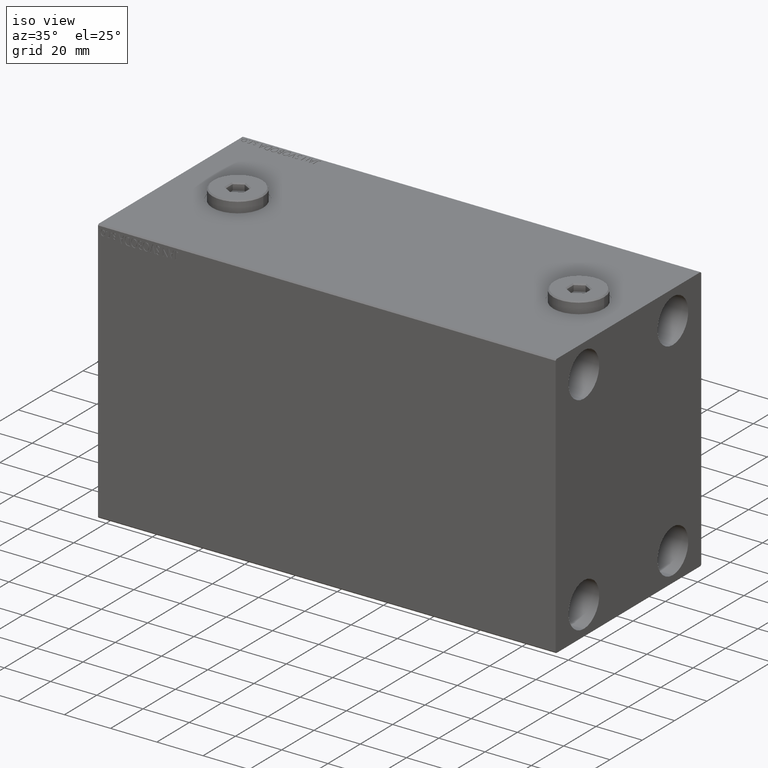
[diagram: clean part render]
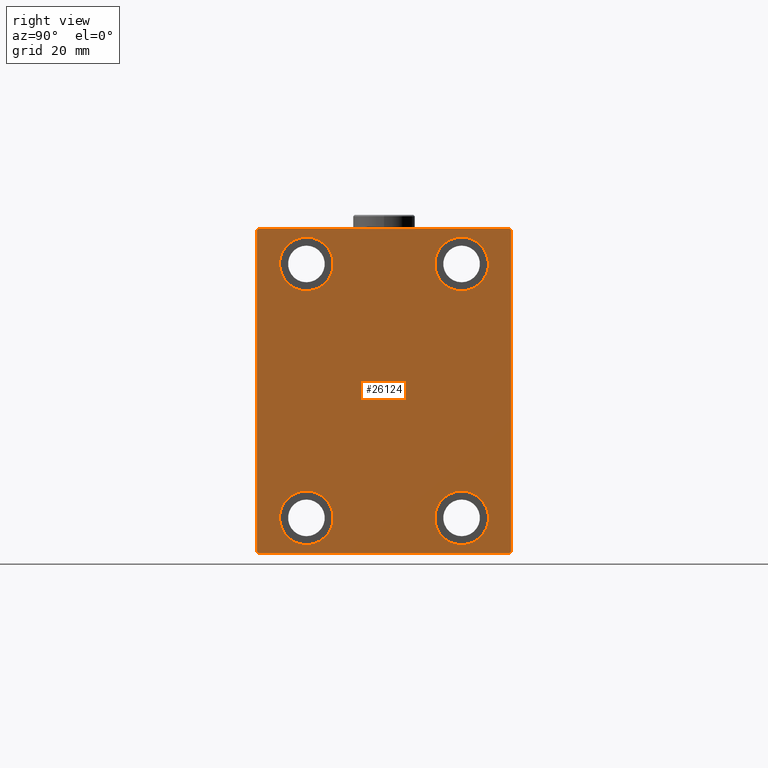
[diagram: tour spotlight — one face highlighted and labeled with its STEP entity id]
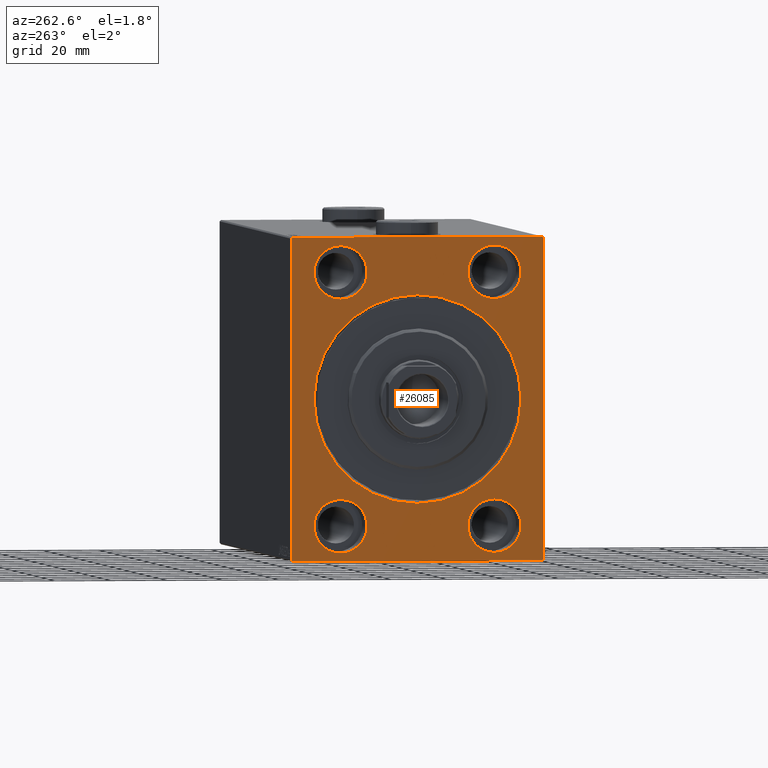
[diagram: tour spotlight — one face highlighted and labeled with its STEP entity id]
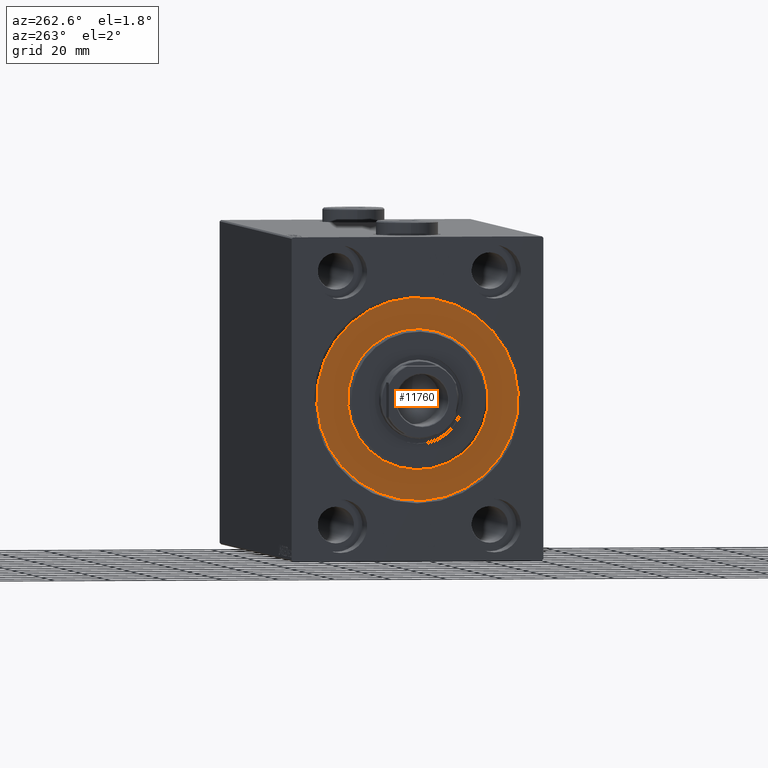
[diagram: tour spotlight — one face highlighted and labeled with its STEP entity id]
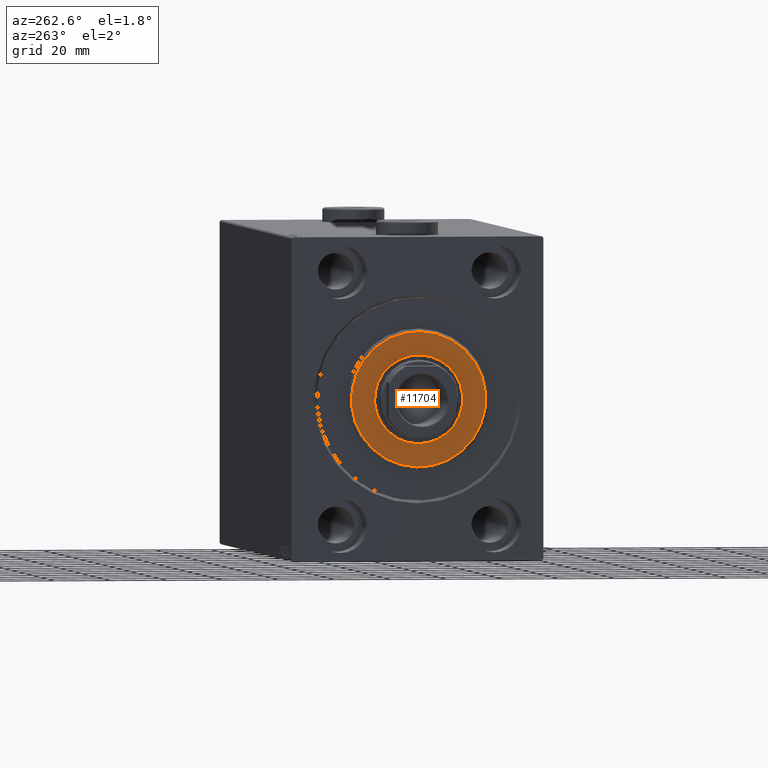
[diagram: tour spotlight — one face highlighted and labeled with its STEP entity id]
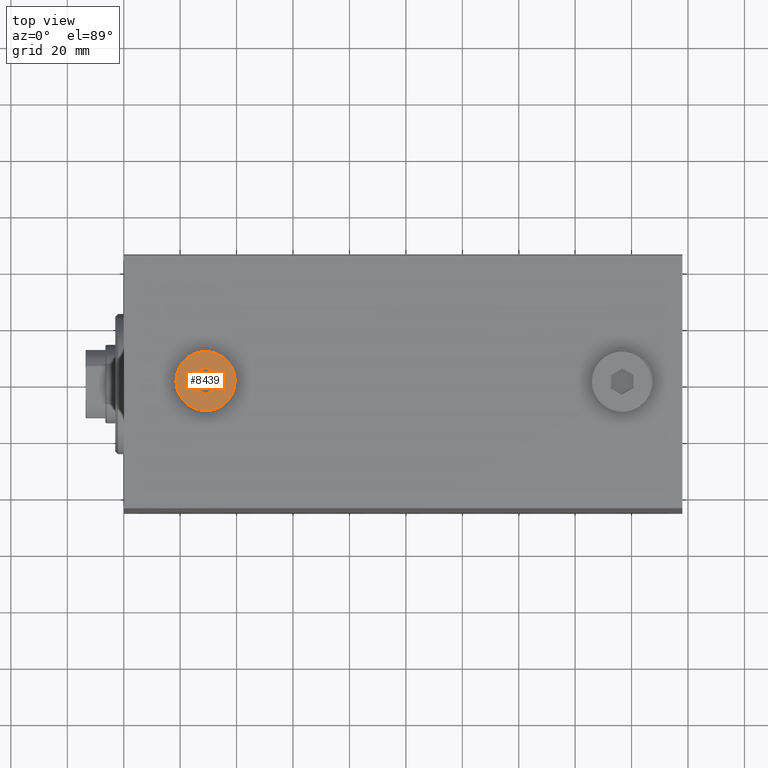
[diagram: tour spotlight — one face highlighted and labeled with its STEP entity id]
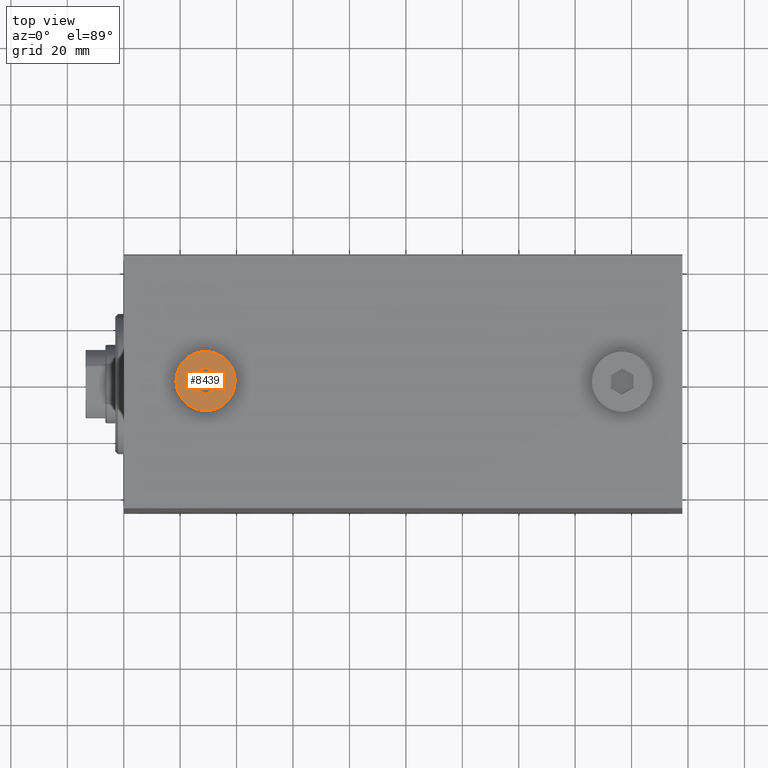
[diagram: tour spotlight — one face highlighted and labeled with its STEP entity id]
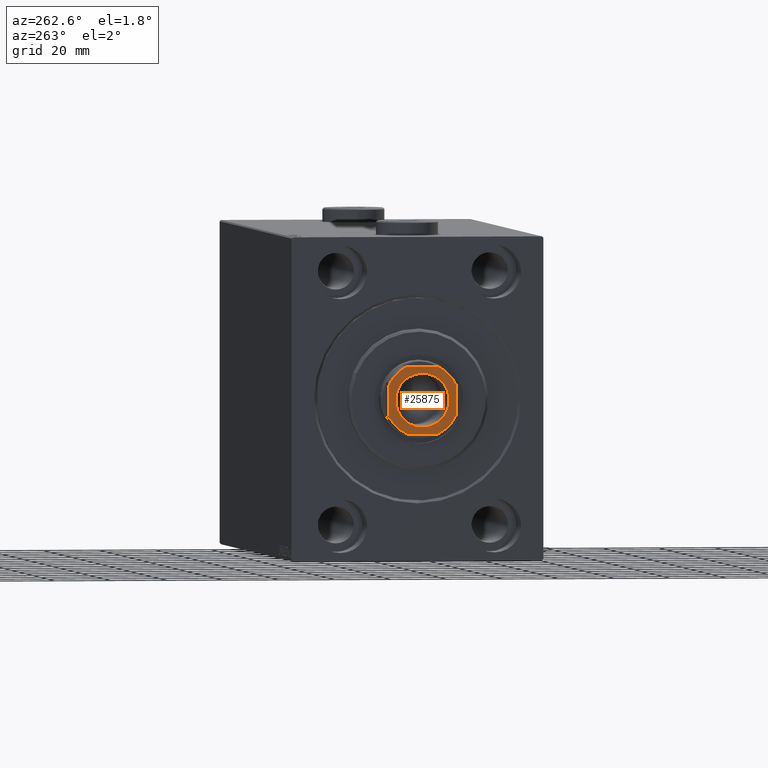
[diagram: tour spotlight — one face highlighted and labeled with its STEP entity id]
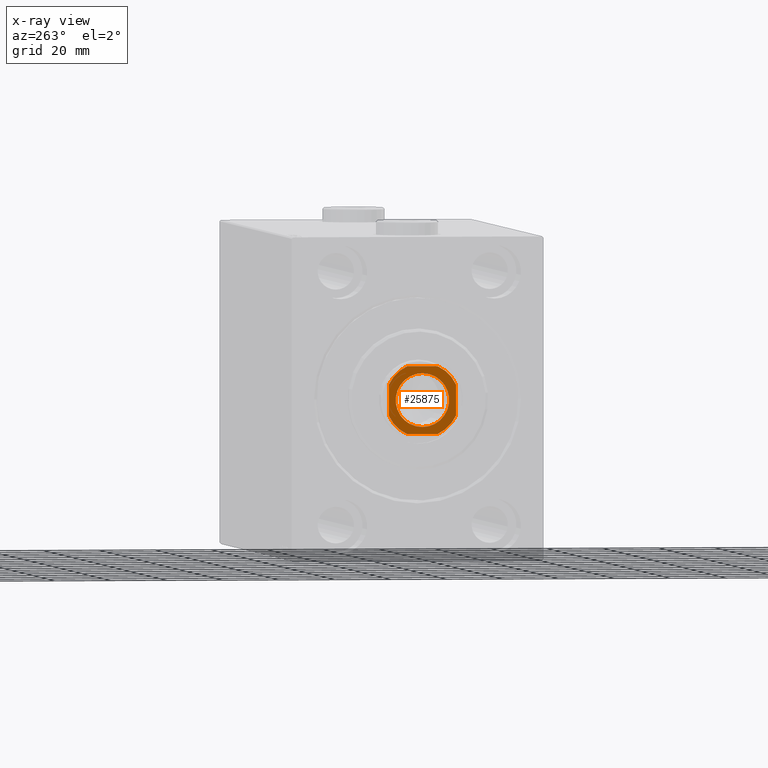
[diagram: x-ray of the same camera — body ghosted, this tour face saturated]
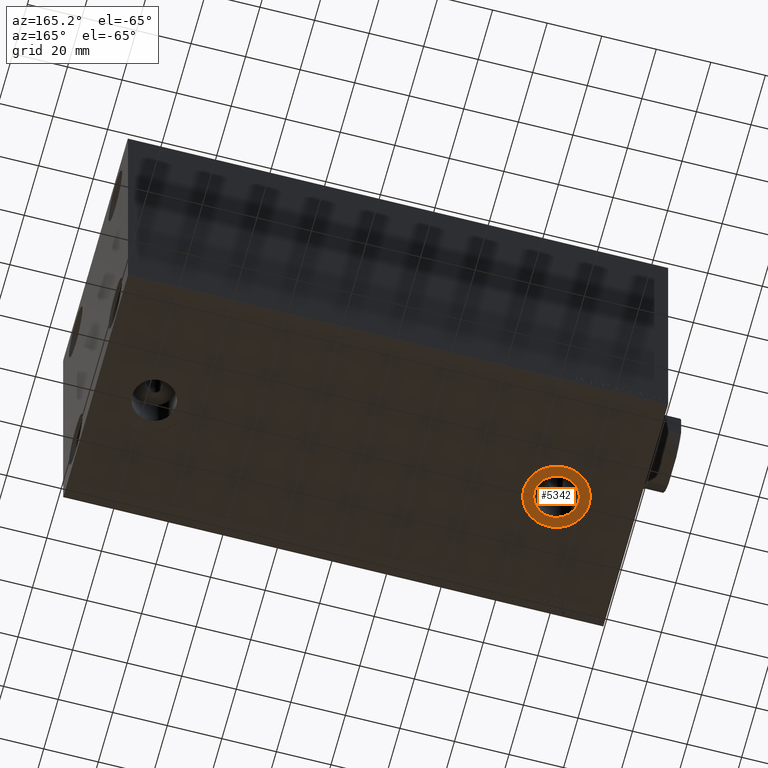
[diagram: tour spotlight — one face highlighted and labeled with its STEP entity id]
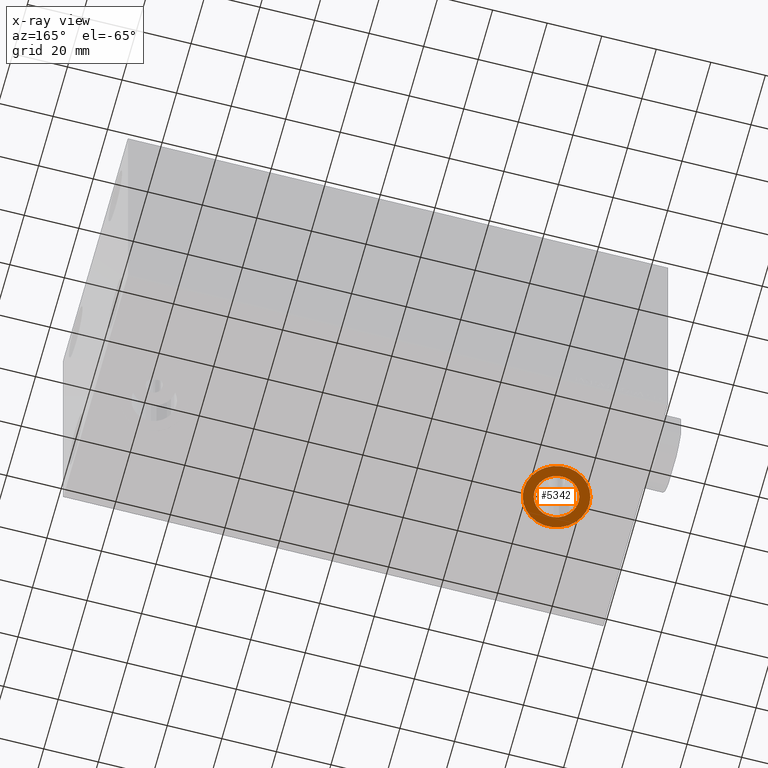
[diagram: x-ray of the same camera — body ghosted, this tour face saturated]
A machine part: a face-by-face anatomy tour. The part has 919 B-rep faces; the first image is the clean iso view, then the 8 largest visible faces are spotlighted one at a time (largest first), each with its STEP entity span.

Face 1 — right view, entity #26124. In plain terms, the highlighted planar face has unit normal (1, 0, 0).
Definition (entity closure, byte-faithful):
#181 = VECTOR ( 'NONE', #43502, 1000.000000000000000 ) ;
#204 = DIRECTION ( 'NONE',  ( -1.000000000000000000, -0.000000000000000000, -0.000000000000000000 ) ) ;
#213 = ORIENTED_EDGE ( 'NONE', *, *, #39618, .T. ) ;
#563 = EDGE_CURVE ( 'NONE', #10781, #34717, #21972, .T. ) ;
#865 = CARTESIAN_POINT ( 'NONE',  ( 198.0000000000000000, 45.00000000000000000, 57.00000000000003553 ) ) ;
#867 = VERTEX_POINT ( 'NONE', #19537 ) ;
#879 = CARTESIAN_POINT ( 'NONE',  ( 198.0000000000000000, 51.00000000000127187, -50.99999999999844391 ) ) ;
#1692 = VERTEX_POINT ( 'NONE', #29910 ) ;
#2093 = EDGE_CURVE ( 'NONE', #34717, #38279, #29305, .T. ) ;
#2417 = DIRECTION ( 'NONE',  ( 0.000000000000000000, 0.000000000000000000, 1.000000000000000000 ) ) ;
#2841 = DIRECTION ( 'NONE',  ( 1.000000000000000000, 0.000000000000000000, 0.000000000000000000 ) ) ;
#3553 = DIRECTION ( 'NONE',  ( -1.000000000000000000, -0.000000000000000000, -0.000000000000000000 ) ) ;
#4070 = VERTEX_POINT ( 'NONE', #18867 ) ;
#4388 = CARTESIAN_POINT ( 'NONE',  ( 198.0000000000000000, -44.50000000000000000, 57.49999999999999289 ) ) ;
#4670 = ORIENTED_EDGE ( 'NONE', *, *, #44847, .T. ) ;
#4740 = VERTEX_POINT ( 'NONE', #11331 ) ;
#4951 = CARTESIAN_POINT ( 'NONE',  ( 198.0000000000000000, 27.50000000000001066, 35.50000000000000711 ) ) ;
#5167 = DIRECTION ( 'NONE',  ( 0.000000000000000000, 0.000000000000000000, 1.000000000000000000 ) ) ;
#5831 = PLANE ( 'NONE',  #21776 ) ;
#5850 = DIRECTION ( 'NONE',  ( -1.000000000000000000, -0.000000000000000000, -0.000000000000000000 ) ) ;
#6202 = CIRCLE ( 'NONE', #43532, 9.500000000000001776 ) ;
#6541 = DIRECTION ( 'NONE',  ( 0.000000000000000000, 0.000000000000000000, -1.000000000000000000 ) ) ;
#6786 = EDGE_LOOP ( 'NONE', ( #44523, #213 ) ) ;
#7061 = ORIENTED_EDGE ( 'NONE', *, *, #14788, .T. ) ;
#7080 = CARTESIAN_POINT ( 'NONE',  ( 198.0000000000000000, -27.50000000000000000, -44.99999999999998579 ) ) ;
#7172 = DIRECTION ( 'NONE',  ( -0.000000000000000000, -0.7071067811865671127, 0.7071067811865279218 ) ) ;
#7267 = CARTESIAN_POINT ( 'NONE',  ( 198.0000000000000000, -45.00000000000000000, -57.00000000000006395 ) ) ;
#7288 = DIRECTION ( 'NONE',  ( -0.000000000000000000, 0.7071067811865279218, 0.7071067811865671127 ) ) ;
#7346 = AXIS2_PLACEMENT_3D ( 'NONE', #23301, #3553, #42055 ) ;
#7829 = CIRCLE ( 'NONE', #37861, 9.500000000000001776 ) ;
#7971 = ORIENTED_EDGE ( 'NONE', *, *, #33132, .T. ) ;
#8116 = EDGE_CURVE ( 'NONE', #31806, #867, #6202, .T. ) ;
#8598 = AXIS2_PLACEMENT_3D ( 'NONE', #28412, #39637, #17867 ) ;
#8632 = CARTESIAN_POINT ( 'NONE',  ( 198.0000000000000000, 27.50000000000001066, 45.00000000000000711 ) ) ;
#8762 = ORIENTED_EDGE ( 'NONE', *, *, #2093, .T. ) ;
#9050 = FACE_BOUND ( 'NONE', #18730, .T. ) ;
#9763 = DIRECTION ( 'NONE',  ( 0.000000000000000000, -0.7071067811865671127, -0.7071067811865279218 ) ) ;
#10012 = CARTESIAN_POINT ( 'NONE',  ( 198.0000000000000000, -27.50000000000000000, -35.49999999999998579 ) ) ;
#10220 = LINE ( 'NONE', #16870, #10300 ) ;
#10262 = VECTOR ( 'NONE', #38745, 1000.000000000000000 ) ;
#10300 = VECTOR ( 'NONE', #9763, 1000.000000000000000 ) ;
#10519 = ORIENTED_EDGE ( 'NONE', *, *, #8116, .T. ) ;
#10781 = VERTEX_POINT ( 'NONE', #23303 ) ;
#10953 = CARTESIAN_POINT ( 'NONE',  ( 198.0000000000000000, -50.99999999999877787, -51.00000000000160583 ) ) ;
#11331 = CARTESIAN_POINT ( 'NONE',  ( 198.0000000000000000, 27.49999999999998934, -54.49999999999998579 ) ) ;
#12286 = DIRECTION ( 'NONE',  ( 0.000000000000000000, 0.000000000000000000, 1.000000000000000000 ) ) ;
#12488 = FACE_BOUND ( 'NONE', #21763, .T. ) ;
#14159 = DIRECTION ( 'NONE',  ( -0.000000000000000000, 0.7071067811865671127, -0.7071067811865279218 ) ) ;
#14480 = ORIENTED_EDGE ( 'NONE', *, *, #39370, .T. ) ;
#14788 = EDGE_CURVE ( 'NONE', #24076, #15415, #16484, .T. ) ;
#15118 = EDGE_LOOP ( 'NONE', ( #7061, #36381, #32181, #14480, #22936, #28228, #8762, #4670 ) ) ;
#15386 = ORIENTED_EDGE ( 'NONE', *, *, #16652, .T. ) ;
#15415 = VERTEX_POINT ( 'NONE', #4388 ) ;
#15641 = DIRECTION ( 'NONE',  ( 0.000000000000000000, 0.000000000000000000, 1.000000000000000000 ) ) ;
#16086 = AXIS2_PLACEMENT_3D ( 'NONE', #8632, #33813, #2417 ) ;
#16222 = EDGE_LOOP ( 'NONE', ( #37709, #10519 ) ) ;
#16377 = DIRECTION ( 'NONE',  ( -1.000000000000000000, -0.000000000000000000, -0.000000000000000000 ) ) ;
#16484 = LINE ( 'NONE', #37806, #42032 ) ;
#16639 = CIRCLE ( 'NONE', #8598, 9.500000000000001776 ) ;
#16652 = EDGE_CURVE ( 'NONE', #1692, #26870, #31076, .T. ) ;
#16870 = CARTESIAN_POINT ( 'NONE',  ( 198.0000000000000000, -50.99999999999877787, 51.00000000000160583 ) ) ;
#17867 = DIRECTION ( 'NONE',  ( 0.000000000000000000, 0.000000000000000000, 1.000000000000000000 ) ) ;
#17879 = CARTESIAN_POINT ( 'NONE',  ( 198.0000000000000000, -45.00000000000000000, -57.50000000000000711 ) ) ;
#18092 = CARTESIAN_POINT ( 'NONE',  ( 198.0000000000000000, 45.00000000000001421, -57.50000000000000711 ) ) ;
#18730 = EDGE_LOOP ( 'NONE', ( #20747, #38603 ) ) ;
#18749 = AXIS2_PLACEMENT_3D ( 'NONE', #25959, #33057, #15641 ) ;
#18867 = CARTESIAN_POINT ( 'NONE',  ( 198.0000000000000000, -44.50000000000002842, -57.50000000000000711 ) ) ;
#19239 = CARTESIAN_POINT ( 'NONE',  ( 198.0000000000000000, -45.00000000000000000, 57.00000000000004974 ) ) ;
#19537 = CARTESIAN_POINT ( 'NONE',  ( 198.0000000000000000, -27.50000000000000000, -54.49999999999998579 ) ) ;
#19818 = DIRECTION ( 'NONE',  ( 0.000000000000000000, 0.000000000000000000, -1.000000000000000000 ) ) ;
#20747 = ORIENTED_EDGE ( 'NONE', *, *, #21163, .T. ) ;
#21163 = EDGE_CURVE ( 'NONE', #4740, #39105, #23916, .T. ) ;
#21206 = CARTESIAN_POINT ( 'NONE',  ( 198.0000000000000000, -45.00000000000000000, 57.49999999999999289 ) ) ;
#21264 = CIRCLE ( 'NONE', #7346, 9.500000000000001776 ) ;
#21763 = EDGE_LOOP ( 'NONE', ( #7971, #15386 ) ) ;
#21776 = AXIS2_PLACEMENT_3D ( 'NONE', #37466, #2841, #19818 ) ;
#21972 = LINE ( 'NONE', #879, #27960 ) ;
#22910 = CARTESIAN_POINT ( 'NONE',  ( 198.0000000000000000, 27.49999999999998934, -35.49999999999998579 ) ) ;
#22936 = ORIENTED_EDGE ( 'NONE', *, *, #34755, .T. ) ;
#22961 = EDGE_CURVE ( 'NONE', #27221, #27839, #44464, .T. ) ;
#23038 = FACE_BOUND ( 'NONE', #6786, .T. ) ;
#23301 = CARTESIAN_POINT ( 'NONE',  ( 198.0000000000000000, -27.49999999999998934, 45.00000000000000711 ) ) ;
#23303 = CARTESIAN_POINT ( 'NONE',  ( 198.0000000000000000, 44.50000000000004263, -57.50000000000000711 ) ) ;
#23916 = CIRCLE ( 'NONE', #41482, 9.500000000000001776 ) ;
#24076 = VERTEX_POINT ( 'NONE', #28856 ) ;
#24753 = CARTESIAN_POINT ( 'NONE',  ( 198.0000000000000000, 45.00000000000001421, -57.00000000000003553 ) ) ;
#25670 = LINE ( 'NONE', #17879, #10262 ) ;
#25959 = CARTESIAN_POINT ( 'NONE',  ( 198.0000000000000000, -27.49999999999998934, 45.00000000000000711 ) ) ;
#26124 = ADVANCED_FACE ( 'NONE', ( #9050, #23038, #12488, #37013, #37238 ), #5831, .T. ) ;
#26212 = EDGE_CURVE ( 'NONE', #39105, #4740, #7829, .T. ) ;
#26870 = VERTEX_POINT ( 'NONE', #4951 ) ;
#27089 = EDGE_CURVE ( 'NONE', #867, #31806, #16639, .T. ) ;
#27221 = VERTEX_POINT ( 'NONE', #40749 ) ;
#27627 = LINE ( 'NONE', #21206, #40395 ) ;
#27839 = VERTEX_POINT ( 'NONE', #37380 ) ;
#27960 = VECTOR ( 'NONE', #7288, 1000.000000000000000 ) ;
#28164 = DIRECTION ( 'NONE',  ( 0.000000000000000000, 0.000000000000000000, 1.000000000000000000 ) ) ;
#28228 = ORIENTED_EDGE ( 'NONE', *, *, #563, .T. ) ;
#28412 = CARTESIAN_POINT ( 'NONE',  ( 198.0000000000000000, -27.50000000000000000, -44.99999999999998579 ) ) ;
#28856 = CARTESIAN_POINT ( 'NONE',  ( 198.0000000000000000, 44.50000000000002842, 57.50000000000000711 ) ) ;
#29305 = LINE ( 'NONE', #18092, #181 ) ;
#29910 = CARTESIAN_POINT ( 'NONE',  ( 198.0000000000000000, 27.50000000000001066, 54.50000000000000711 ) ) ;
#31076 = CIRCLE ( 'NONE', #45010, 9.500000000000001776 ) ;
#31806 = VERTEX_POINT ( 'NONE', #10012 ) ;
#31938 = CARTESIAN_POINT ( 'NONE',  ( 198.0000000000000000, 27.49999999999998934, -44.99999999999998579 ) ) ;
#32141 = LINE ( 'NONE', #42921, #44083 ) ;
#32181 = ORIENTED_EDGE ( 'NONE', *, *, #43234, .T. ) ;
#32248 = VECTOR ( 'NONE', #14159, 1000.000000000000000 ) ;
#33057 = DIRECTION ( 'NONE',  ( -1.000000000000000000, -0.000000000000000000, -0.000000000000000000 ) ) ;
#33132 = EDGE_CURVE ( 'NONE', #26870, #1692, #44611, .T. ) ;
#33813 = DIRECTION ( 'NONE',  ( -1.000000000000000000, -0.000000000000000000, -0.000000000000000000 ) ) ;
#34356 = DIRECTION ( 'NONE',  ( 0.000000000000000000, -1.000000000000000000, -1.541976423090495387E-16 ) ) ;
#34717 = VERTEX_POINT ( 'NONE', #24753 ) ;
#34755 = EDGE_CURVE ( 'NONE', #4070, #10781, #25670, .T. ) ;
#34882 = VERTEX_POINT ( 'NONE', #19239 ) ;
#35145 = DIRECTION ( 'NONE',  ( 0.000000000000000000, 0.000000000000000000, 1.000000000000000000 ) ) ;
#36198 = EDGE_CURVE ( 'NONE', #15415, #34882, #10220, .T. ) ;
#36381 = ORIENTED_EDGE ( 'NONE', *, *, #36198, .T. ) ;
#37013 = FACE_BOUND ( 'NONE', #16222, .T. ) ;
#37238 = FACE_OUTER_BOUND ( 'NONE', #15118, .T. ) ;
#37257 = CARTESIAN_POINT ( 'NONE',  ( 198.0000000000000000, 27.49999999999998934, -44.99999999999998579 ) ) ;
#37380 = CARTESIAN_POINT ( 'NONE',  ( 198.0000000000000000, -27.49999999999998934, 54.50000000000000711 ) ) ;
#37466 = CARTESIAN_POINT ( 'NONE',  ( 198.0000000000000000, 0.000000000000000000, 0.000000000000000000 ) ) ;
#37709 = ORIENTED_EDGE ( 'NONE', *, *, #27089, .T. ) ;
#37806 = CARTESIAN_POINT ( 'NONE',  ( 198.0000000000000000, 45.00000000000000000, 57.50000000000000711 ) ) ;
#37861 = AXIS2_PLACEMENT_3D ( 'NONE', #31938, #45234, #35145 ) ;
#38279 = VERTEX_POINT ( 'NONE', #865 ) ;
#38603 = ORIENTED_EDGE ( 'NONE', *, *, #26212, .T. ) ;
#38745 = DIRECTION ( 'NONE',  ( 0.000000000000000000, 1.000000000000000000, 0.000000000000000000 ) ) ;
#39105 = VERTEX_POINT ( 'NONE', #22910 ) ;
#39146 = LINE ( 'NONE', #10953, #32248 ) ;
#39370 = EDGE_CURVE ( 'NONE', #42049, #4070, #39146, .T. ) ;
#39618 = EDGE_CURVE ( 'NONE', #27839, #27221, #21264, .T. ) ;
#39637 = DIRECTION ( 'NONE',  ( -1.000000000000000000, -0.000000000000000000, -0.000000000000000000 ) ) ;
#40395 = VECTOR ( 'NONE', #6541, 1000.000000000000000 ) ;
#40670 = CARTESIAN_POINT ( 'NONE',  ( 198.0000000000000000, 27.50000000000001066, 45.00000000000000711 ) ) ;
#40749 = CARTESIAN_POINT ( 'NONE',  ( 198.0000000000000000, -27.49999999999998934, 35.50000000000000711 ) ) ;
#41482 = AXIS2_PLACEMENT_3D ( 'NONE', #37257, #5850, #12286 ) ;
#42032 = VECTOR ( 'NONE', #34356, 1000.000000000000000 ) ;
#42049 = VERTEX_POINT ( 'NONE', #7267 ) ;
#42055 = DIRECTION ( 'NONE',  ( 0.000000000000000000, 0.000000000000000000, 1.000000000000000000 ) ) ;
#42921 = CARTESIAN_POINT ( 'NONE',  ( 198.0000000000000000, 50.99999999999877787, 51.00000000000160583 ) ) ;
#43234 = EDGE_CURVE ( 'NONE', #34882, #42049, #27627, .T. ) ;
#43502 = DIRECTION ( 'NONE',  ( 0.000000000000000000, -1.206764157201257045E-16, 1.000000000000000000 ) ) ;
#43532 = AXIS2_PLACEMENT_3D ( 'NONE', #7080, #204, #28164 ) ;
#44083 = VECTOR ( 'NONE', #7172, 1000.000000000000000 ) ;
#44464 = CIRCLE ( 'NONE', #18749, 9.500000000000001776 ) ;
#44523 = ORIENTED_EDGE ( 'NONE', *, *, #22961, .T. ) ;
#44611 = CIRCLE ( 'NONE', #16086, 9.500000000000001776 ) ;
#44847 = EDGE_CURVE ( 'NONE', #38279, #24076, #32141, .T. ) ;
#45010 = AXIS2_PLACEMENT_3D ( 'NONE', #40670, #16377, #5167 ) ;
#45234 = DIRECTION ( 'NONE',  ( -1.000000000000000000, -0.000000000000000000, -0.000000000000000000 ) ) ;

Face 2 — auxiliary view, entity #26085. In plain terms, the highlighted planar face has unit normal (1, 0, 0).
Definition (entity closure, byte-faithful):
#802 = CARTESIAN_POINT ( 'NONE',  ( 0.000000000000000000, -27.49999999999998934, 54.50000000000000711 ) ) ;
#875 = EDGE_CURVE ( 'NONE', #16537, #43256, #33811, .T. ) ;
#970 = LINE ( 'NONE', #8064, #10047 ) ;
#975 = VERTEX_POINT ( 'NONE', #9439 ) ;
#1254 = ORIENTED_EDGE ( 'NONE', *, *, #14060, .F. ) ;
#1477 = ORIENTED_EDGE ( 'NONE', *, *, #29715, .F. ) ;
#1713 = CARTESIAN_POINT ( 'NONE',  ( 0.000000000000000000, 27.49999999999998934, -44.99999999999998579 ) ) ;
#2096 = EDGE_LOOP ( 'NONE', ( #8340, #10782 ) ) ;
#2336 = CARTESIAN_POINT ( 'NONE',  ( 0.000000000000000000, -27.49999999999998934, 45.00000000000000711 ) ) ;
#2617 = DIRECTION ( 'NONE',  ( 0.000000000000000000, 0.000000000000000000, -1.000000000000000000 ) ) ;
#2965 = ORIENTED_EDGE ( 'NONE', *, *, #31184, .F. ) ;
#2994 = DIRECTION ( 'NONE',  ( 0.000000000000000000, 1.000000000000000000, 0.000000000000000000 ) ) ;
#3482 = CARTESIAN_POINT ( 'NONE',  ( 0.000000000000000000, 27.49999999999998934, -54.49999999999998579 ) ) ;
#3646 = AXIS2_PLACEMENT_3D ( 'NONE', #31733, #24634, #10209 ) ;
#3760 = ORIENTED_EDGE ( 'NONE', *, *, #20900, .F. ) ;
#4242 = VERTEX_POINT ( 'NONE', #35330 ) ;
#4408 = VERTEX_POINT ( 'NONE', #37986 ) ;
#4886 = CARTESIAN_POINT ( 'NONE',  ( 0.000000000000000000, 44.50000000000004263, -57.50000000000000711 ) ) ;
#5075 = VERTEX_POINT ( 'NONE', #26121 ) ;
#5191 = AXIS2_PLACEMENT_3D ( 'NONE', #34803, #31812, #31367 ) ;
#6210 = VERTEX_POINT ( 'NONE', #32272 ) ;
#6310 = ORIENTED_EDGE ( 'NONE', *, *, #21274, .T. ) ;
#6516 = FACE_BOUND ( 'NONE', #43540, .T. ) ;
#6663 = DIRECTION ( 'NONE',  ( -0.000000000000000000, 0.7071067811865671127, 0.7071067811865279218 ) ) ;
#7572 = EDGE_CURVE ( 'NONE', #21404, #41138, #41267, .T. ) ;
#8064 = CARTESIAN_POINT ( 'NONE',  ( 0.000000000000000000, -45.00000000000000000, 57.49999999999999289 ) ) ;
#8118 = DIRECTION ( 'NONE',  ( 0.000000000000000000, -0.7071067811865279218, -0.7071067811865671127 ) ) ;
#8240 = CARTESIAN_POINT ( 'NONE',  ( 0.000000000000000000, 27.50000000000001066, 54.50000000000000711 ) ) ;
#8340 = ORIENTED_EDGE ( 'NONE', *, *, #10083, .T. ) ;
#8723 = DIRECTION ( 'NONE',  ( -0.000000000000000000, -0.7071067811865671127, 0.7071067811865279218 ) ) ;
#9295 = CARTESIAN_POINT ( 'NONE',  ( 0.000000000000000000, 0.000000000000000000, 0.000000000000000000 ) ) ;
#9384 = AXIS2_PLACEMENT_3D ( 'NONE', #31975, #28999, #10897 ) ;
#9417 = CARTESIAN_POINT ( 'NONE',  ( 0.000000000000000000, 4.531193156845210737E-15, -37.00000000000003553 ) ) ;
#9439 = CARTESIAN_POINT ( 'NONE',  ( 0.000000000000000000, -45.00000000000000000, -57.00000000000006395 ) ) ;
#9629 = VERTEX_POINT ( 'NONE', #3482 ) ;
#9951 = FACE_BOUND ( 'NONE', #2096, .T. ) ;
#10047 = VECTOR ( 'NONE', #14486, 1000.000000000000000 ) ;
#10070 = DIRECTION ( 'NONE',  ( -1.000000000000000000, 0.000000000000000000, 0.000000000000000000 ) ) ;
#10083 = EDGE_CURVE ( 'NONE', #17755, #33872, #45029, .T. ) ;
#10209 = DIRECTION ( 'NONE',  ( 0.000000000000000000, 0.000000000000000000, 1.000000000000000000 ) ) ;
#10782 = ORIENTED_EDGE ( 'NONE', *, *, #21092, .T. ) ;
#10897 = DIRECTION ( 'NONE',  ( 0.000000000000000000, 0.000000000000000000, 1.000000000000000000 ) ) ;
#11020 = LINE ( 'NONE', #38528, #26389 ) ;
#11255 = VERTEX_POINT ( 'NONE', #26457 ) ;
#12234 = CARTESIAN_POINT ( 'NONE',  ( 0.000000000000000000, -45.00000000000000000, 57.00000000000004974 ) ) ;
#12307 = EDGE_LOOP ( 'NONE', ( #1477, #2965 ) ) ;
#12396 = ORIENTED_EDGE ( 'NONE', *, *, #19368, .T. ) ;
#12417 = VERTEX_POINT ( 'NONE', #4886 ) ;
#12435 = DIRECTION ( 'NONE',  ( 0.000000000000000000, 0.000000000000000000, 1.000000000000000000 ) ) ;
#12692 = VERTEX_POINT ( 'NONE', #17677 ) ;
#12732 = DIRECTION ( 'NONE',  ( 1.000000000000000000, 0.000000000000000000, 0.000000000000000000 ) ) ;
#12834 = LINE ( 'NONE', #15598, #22778 ) ;
#13183 = DIRECTION ( 'NONE',  ( 0.000000000000000000, 0.000000000000000000, -1.000000000000000000 ) ) ;
#13211 = CARTESIAN_POINT ( 'NONE',  ( 0.000000000000000000, -44.50000000000002842, -57.50000000000000711 ) ) ;
#13520 = DIRECTION ( 'NONE',  ( 0.000000000000000000, 0.000000000000000000, 1.000000000000000000 ) ) ;
#14055 = AXIS2_PLACEMENT_3D ( 'NONE', #2336, #23207, #12435 ) ;
#14060 = EDGE_CURVE ( 'NONE', #9629, #5075, #42814, .T. ) ;
#14102 = LINE ( 'NONE', #20988, #29897 ) ;
#14486 = DIRECTION ( 'NONE',  ( 0.000000000000000000, 0.000000000000000000, -1.000000000000000000 ) ) ;
#14519 = AXIS2_PLACEMENT_3D ( 'NONE', #38048, #38729, #13520 ) ;
#15598 = CARTESIAN_POINT ( 'NONE',  ( 0.000000000000000000, -44.50000000000002842, -57.50000000000000711 ) ) ;
#15903 = ORIENTED_EDGE ( 'NONE', *, *, #34096, .F. ) ;
#16000 = CIRCLE ( 'NONE', #9384, 9.500000000000001776 ) ;
#16009 = VERTEX_POINT ( 'NONE', #24007 ) ;
#16097 = ORIENTED_EDGE ( 'NONE', *, *, #875, .F. ) ;
#16537 = VERTEX_POINT ( 'NONE', #31764 ) ;
#16979 = CARTESIAN_POINT ( 'NONE',  ( 0.000000000000000000, -45.00000000000000000, 57.00000000000004974 ) ) ;
#17677 = CARTESIAN_POINT ( 'NONE',  ( 0.000000000000000000, 45.00000000000001421, -57.00000000000003553 ) ) ;
#17755 = VERTEX_POINT ( 'NONE', #36297 ) ;
#17983 = LINE ( 'NONE', #35858, #20975 ) ;
#18066 = CIRCLE ( 'NONE', #18786, 37.00000000000003553 ) ;
#18193 = CIRCLE ( 'NONE', #14519, 9.500000000000001776 ) ;
#18786 = AXIS2_PLACEMENT_3D ( 'NONE', #9295, #12732, #13183 ) ;
#18817 = CARTESIAN_POINT ( 'NONE',  ( 0.000000000000000000, 44.50000000000002842, 57.50000000000000711 ) ) ;
#18881 = ORIENTED_EDGE ( 'NONE', *, *, #37612, .T. ) ;
#19102 = CIRCLE ( 'NONE', #41040, 9.500000000000001776 ) ;
#19344 = ORIENTED_EDGE ( 'NONE', *, *, #36944, .F. ) ;
#19368 = EDGE_CURVE ( 'NONE', #11255, #16009, #39903, .T. ) ;
#19532 = AXIS2_PLACEMENT_3D ( 'NONE', #33786, #34468, #2617 ) ;
#20495 = FACE_BOUND ( 'NONE', #12307, .T. ) ;
#20900 = EDGE_CURVE ( 'NONE', #12692, #16009, #28122, .T. ) ;
#20975 = VECTOR ( 'NONE', #8118, 1000.000000000000000 ) ;
#20988 = CARTESIAN_POINT ( 'NONE',  ( 0.000000000000000000, 45.00000000000000000, 57.50000000000000711 ) ) ;
#21092 = EDGE_CURVE ( 'NONE', #33872, #17755, #18066, .T. ) ;
#21274 = EDGE_CURVE ( 'NONE', #12692, #12417, #17983, .T. ) ;
#21404 = VERTEX_POINT ( 'NONE', #12234 ) ;
#21631 = EDGE_CURVE ( 'NONE', #21404, #975, #970, .T. ) ;
#21656 = ORIENTED_EDGE ( 'NONE', *, *, #21631, .F. ) ;
#22222 = CARTESIAN_POINT ( 'NONE',  ( 0.000000000000000000, -44.50000000000000000, 57.49999999999999289 ) ) ;
#22285 = VECTOR ( 'NONE', #6663, 1000.000000000000000 ) ;
#22778 = VECTOR ( 'NONE', #8723, 1000.000000000000000 ) ;
#22900 = DIRECTION ( 'NONE',  ( 0.000000000000000000, 0.000000000000000000, -1.000000000000000000 ) ) ;
#23058 = AXIS2_PLACEMENT_3D ( 'NONE', #1713, #43425, #39993 ) ;
#23207 = DIRECTION ( 'NONE',  ( -1.000000000000000000, 0.000000000000000000, 0.000000000000000000 ) ) ;
#23264 = PLANE ( 'NONE',  #19532 ) ;
#23381 = DIRECTION ( 'NONE',  ( 0.000000000000000000, 0.000000000000000000, 1.000000000000000000 ) ) ;
#23522 = EDGE_LOOP ( 'NONE', ( #24095, #1254 ) ) ;
#23571 = DIRECTION ( 'NONE',  ( 1.000000000000000000, 0.000000000000000000, 0.000000000000000000 ) ) ;
#24007 = CARTESIAN_POINT ( 'NONE',  ( 0.000000000000000000, 45.00000000000000000, 57.00000000000003553 ) ) ;
#24095 = ORIENTED_EDGE ( 'NONE', *, *, #37663, .F. ) ;
#24237 = CIRCLE ( 'NONE', #5191, 9.500000000000001776 ) ;
#24634 = DIRECTION ( 'NONE',  ( -1.000000000000000000, 0.000000000000000000, 0.000000000000000000 ) ) ;
#24987 = VERTEX_POINT ( 'NONE', #13211 ) ;
#26085 = ADVANCED_FACE ( 'NONE', ( #9951, #41118, #6516, #34013, #20495, #44107 ), #23264, .F. ) ;
#26121 = CARTESIAN_POINT ( 'NONE',  ( 0.000000000000000000, 27.49999999999998934, -35.49999999999998579 ) ) ;
#26143 = DIRECTION ( 'NONE',  ( -0.000000000000000000, 0.7071067811865671127, -0.7071067811865279218 ) ) ;
#26389 = VECTOR ( 'NONE', #2994, 1000.000000000000000 ) ;
#26457 = CARTESIAN_POINT ( 'NONE',  ( 0.000000000000000000, 44.50000000000002842, 57.50000000000000711 ) ) ;
#27952 = VERTEX_POINT ( 'NONE', #8240 ) ;
#28084 = DIRECTION ( 'NONE',  ( 0.000000000000000000, -1.000000000000000000, -1.541976423090495387E-16 ) ) ;
#28122 = LINE ( 'NONE', #31780, #31238 ) ;
#28922 = AXIS2_PLACEMENT_3D ( 'NONE', #44418, #23571, #22900 ) ;
#28999 = DIRECTION ( 'NONE',  ( -1.000000000000000000, 0.000000000000000000, 0.000000000000000000 ) ) ;
#29715 = EDGE_CURVE ( 'NONE', #4242, #4408, #18193, .T. ) ;
#29880 = ORIENTED_EDGE ( 'NONE', *, *, #29955, .F. ) ;
#29897 = VECTOR ( 'NONE', #28084, 1000.000000000000000 ) ;
#29905 = EDGE_CURVE ( 'NONE', #11255, #41138, #14102, .T. ) ;
#29955 = EDGE_CURVE ( 'NONE', #43256, #16537, #16000, .T. ) ;
#30303 = DIRECTION ( 'NONE',  ( 0.000000000000000000, 0.000000000000000000, 1.000000000000000000 ) ) ;
#31184 = EDGE_CURVE ( 'NONE', #4408, #4242, #37229, .T. ) ;
#31238 = VECTOR ( 'NONE', #41650, 1000.000000000000000 ) ;
#31367 = DIRECTION ( 'NONE',  ( 0.000000000000000000, 0.000000000000000000, 1.000000000000000000 ) ) ;
#31733 = CARTESIAN_POINT ( 'NONE',  ( 0.000000000000000000, 27.50000000000001066, 45.00000000000000711 ) ) ;
#31764 = CARTESIAN_POINT ( 'NONE',  ( 0.000000000000000000, -27.49999999999998934, 35.50000000000000711 ) ) ;
#31780 = CARTESIAN_POINT ( 'NONE',  ( 0.000000000000000000, 45.00000000000001421, -57.50000000000000711 ) ) ;
#31812 = DIRECTION ( 'NONE',  ( -1.000000000000000000, 0.000000000000000000, 0.000000000000000000 ) ) ;
#31975 = CARTESIAN_POINT ( 'NONE',  ( 0.000000000000000000, -27.49999999999998934, 45.00000000000000711 ) ) ;
#32272 = CARTESIAN_POINT ( 'NONE',  ( 0.000000000000000000, 27.50000000000001066, 35.50000000000000711 ) ) ;
#33511 = CARTESIAN_POINT ( 'NONE',  ( 0.000000000000000000, -27.50000000000000000, -44.99999999999998579 ) ) ;
#33786 = CARTESIAN_POINT ( 'NONE',  ( 0.000000000000000000, 0.000000000000000000, 0.000000000000000000 ) ) ;
#33811 = CIRCLE ( 'NONE', #14055, 9.500000000000001776 ) ;
#33872 = VERTEX_POINT ( 'NONE', #9417 ) ;
#34013 = FACE_BOUND ( 'NONE', #40512, .T. ) ;
#34096 = EDGE_CURVE ( 'NONE', #6210, #27952, #38047, .T. ) ;
#34468 = DIRECTION ( 'NONE',  ( 1.000000000000000000, 0.000000000000000000, 0.000000000000000000 ) ) ;
#34803 = CARTESIAN_POINT ( 'NONE',  ( 0.000000000000000000, 27.50000000000001066, 45.00000000000000711 ) ) ;
#35032 = AXIS2_PLACEMENT_3D ( 'NONE', #33511, #39944, #30303 ) ;
#35330 = CARTESIAN_POINT ( 'NONE',  ( 0.000000000000000000, -27.50000000000000000, -35.49999999999998579 ) ) ;
#35858 = CARTESIAN_POINT ( 'NONE',  ( 0.000000000000000000, 45.00000000000001421, -57.00000000000003553 ) ) ;
#36297 = CARTESIAN_POINT ( 'NONE',  ( 0.000000000000000000, 0.000000000000000000, 37.00000000000003553 ) ) ;
#36944 = EDGE_CURVE ( 'NONE', #27952, #6210, #24237, .T. ) ;
#37229 = CIRCLE ( 'NONE', #35032, 9.500000000000001776 ) ;
#37612 = EDGE_CURVE ( 'NONE', #24987, #975, #12834, .T. ) ;
#37663 = EDGE_CURVE ( 'NONE', #5075, #9629, #19102, .T. ) ;
#37986 = CARTESIAN_POINT ( 'NONE',  ( 0.000000000000000000, -27.50000000000000000, -54.49999999999998579 ) ) ;
#38047 = CIRCLE ( 'NONE', #3646, 9.500000000000001776 ) ;
#38048 = CARTESIAN_POINT ( 'NONE',  ( 0.000000000000000000, -27.50000000000000000, -44.99999999999998579 ) ) ;
#38528 = CARTESIAN_POINT ( 'NONE',  ( 0.000000000000000000, -45.00000000000000000, -57.50000000000000711 ) ) ;
#38729 = DIRECTION ( 'NONE',  ( -1.000000000000000000, 0.000000000000000000, 0.000000000000000000 ) ) ;
#39903 = LINE ( 'NONE', #18817, #44355 ) ;
#39944 = DIRECTION ( 'NONE',  ( -1.000000000000000000, 0.000000000000000000, 0.000000000000000000 ) ) ;
#39993 = DIRECTION ( 'NONE',  ( 0.000000000000000000, 0.000000000000000000, 1.000000000000000000 ) ) ;
#40311 = EDGE_CURVE ( 'NONE', #24987, #12417, #11020, .T. ) ;
#40512 = EDGE_LOOP ( 'NONE', ( #19344, #15903 ) ) ;
#40588 = ORIENTED_EDGE ( 'NONE', *, *, #29905, .F. ) ;
#41040 = AXIS2_PLACEMENT_3D ( 'NONE', #44453, #10070, #23381 ) ;
#41043 = ORIENTED_EDGE ( 'NONE', *, *, #7572, .T. ) ;
#41118 = FACE_BOUND ( 'NONE', #23522, .T. ) ;
#41138 = VERTEX_POINT ( 'NONE', #22222 ) ;
#41267 = LINE ( 'NONE', #16979, #22285 ) ;
#41540 = EDGE_LOOP ( 'NONE', ( #21656, #41043, #40588, #12396, #3760, #6310, #45249, #18881 ) ) ;
#41650 = DIRECTION ( 'NONE',  ( 0.000000000000000000, -1.206764157201257045E-16, 1.000000000000000000 ) ) ;
#42814 = CIRCLE ( 'NONE', #23058, 9.500000000000001776 ) ;
#43256 = VERTEX_POINT ( 'NONE', #802 ) ;
#43425 = DIRECTION ( 'NONE',  ( -1.000000000000000000, 0.000000000000000000, 0.000000000000000000 ) ) ;
#43540 = EDGE_LOOP ( 'NONE', ( #29880, #16097 ) ) ;
#44107 = FACE_OUTER_BOUND ( 'NONE', #41540, .T. ) ;
#44355 = VECTOR ( 'NONE', #26143, 1000.000000000000000 ) ;
#44418 = CARTESIAN_POINT ( 'NONE',  ( 0.000000000000000000, 0.000000000000000000, 0.000000000000000000 ) ) ;
#44453 = CARTESIAN_POINT ( 'NONE',  ( 0.000000000000000000, 27.49999999999998934, -44.99999999999998579 ) ) ;
#45029 = CIRCLE ( 'NONE', #28922, 37.00000000000003553 ) ;
#45249 = ORIENTED_EDGE ( 'NONE', *, *, #40311, .F. ) ;

Face 3 — auxiliary view, entity #11760. In plain terms, the highlighted planar face has unit normal (1, 0, -0).
Definition (entity closure, byte-faithful):
#1693 = AXIS2_PLACEMENT_3D ( 'NONE', #19046, #33021, #43120 ) ;
#3334 = CARTESIAN_POINT ( 'NONE',  ( 0.000000000000000000, 3.061616997868383043E-15, -25.00000000000000000 ) ) ;
#3850 = EDGE_LOOP ( 'NONE', ( #34363, #8788 ) ) ;
#5019 = EDGE_CURVE ( 'NONE', #45193, #41369, #11226, .T. ) ;
#7380 = DIRECTION ( 'NONE',  ( 0.000000000000000000, 0.000000000000000000, -1.000000000000000000 ) ) ;
#8788 = ORIENTED_EDGE ( 'NONE', *, *, #5019, .F. ) ;
#9219 = CARTESIAN_POINT ( 'NONE',  ( 0.000000000000000000, 0.000000000000000000, 25.00000000000000000 ) ) ;
#9291 = CARTESIAN_POINT ( 'NONE',  ( 0.000000000000000000, 0.000000000000000000, -36.00000000000000000 ) ) ;
#9435 = FACE_OUTER_BOUND ( 'NONE', #3850, .T. ) ;
#9664 = DIRECTION ( 'NONE',  ( 0.000000000000000000, 0.000000000000000000, 1.000000000000000000 ) ) ;
#10646 = EDGE_LOOP ( 'NONE', ( #15751, #15530 ) ) ;
#11226 = CIRCLE ( 'NONE', #1693, 36.00000000000000000 ) ;
#11760 = ADVANCED_FACE ( 'NONE', ( #44501, #9435 ), #20661, .F. ) ;
#13302 = CIRCLE ( 'NONE', #21364, 25.00000000000000000 ) ;
#13516 = AXIS2_PLACEMENT_3D ( 'NONE', #44168, #44394, #16885 ) ;
#15049 = EDGE_CURVE ( 'NONE', #41369, #45193, #27414, .T. ) ;
#15530 = ORIENTED_EDGE ( 'NONE', *, *, #33610, .F. ) ;
#15751 = ORIENTED_EDGE ( 'NONE', *, *, #43299, .F. ) ;
#16885 = DIRECTION ( 'NONE',  ( 0.000000000000000000, 0.000000000000000000, 1.000000000000000000 ) ) ;
#18218 = DIRECTION ( 'NONE',  ( 1.000000000000000000, -0.000000000000000000, 0.000000000000000000 ) ) ;
#19046 = CARTESIAN_POINT ( 'NONE',  ( 0.000000000000000000, 0.000000000000000000, 0.000000000000000000 ) ) ;
#20212 = DIRECTION ( 'NONE',  ( -1.000000000000000000, 0.000000000000000000, 0.000000000000000000 ) ) ;
#20661 = PLANE ( 'NONE',  #27543 ) ;
#21364 = AXIS2_PLACEMENT_3D ( 'NONE', #42967, #18218, #39314 ) ;
#21839 = DIRECTION ( 'NONE',  ( 1.000000000000000000, -0.000000000000000000, 0.000000000000000000 ) ) ;
#27414 = CIRCLE ( 'NONE', #13516, 36.00000000000000000 ) ;
#27543 = AXIS2_PLACEMENT_3D ( 'NONE', #34408, #20212, #9664 ) ;
#29998 = CIRCLE ( 'NONE', #42430, 25.00000000000000000 ) ;
#31152 = VERTEX_POINT ( 'NONE', #9219 ) ;
#32593 = CARTESIAN_POINT ( 'NONE',  ( 0.000000000000000000, 0.000000000000000000, 0.000000000000000000 ) ) ;
#33021 = DIRECTION ( 'NONE',  ( -1.000000000000000000, 0.000000000000000000, 0.000000000000000000 ) ) ;
#33610 = EDGE_CURVE ( 'NONE', #36217, #31152, #29998, .T. ) ;
#34059 = CARTESIAN_POINT ( 'NONE',  ( 0.000000000000000000, 4.408728476930470856E-15, 36.00000000000000000 ) ) ;
#34363 = ORIENTED_EDGE ( 'NONE', *, *, #15049, .F. ) ;
#34408 = CARTESIAN_POINT ( 'NONE',  ( 0.000000000000000000, 0.000000000000000000, 0.000000000000000000 ) ) ;
#36217 = VERTEX_POINT ( 'NONE', #3334 ) ;
#39314 = DIRECTION ( 'NONE',  ( 0.000000000000000000, 0.000000000000000000, -1.000000000000000000 ) ) ;
#41369 = VERTEX_POINT ( 'NONE', #9291 ) ;
#42430 = AXIS2_PLACEMENT_3D ( 'NONE', #32593, #21839, #7380 ) ;
#42967 = CARTESIAN_POINT ( 'NONE',  ( 0.000000000000000000, 0.000000000000000000, 0.000000000000000000 ) ) ;
#43120 = DIRECTION ( 'NONE',  ( 0.000000000000000000, 0.000000000000000000, 1.000000000000000000 ) ) ;
#43299 = EDGE_CURVE ( 'NONE', #31152, #36217, #13302, .T. ) ;
#44168 = CARTESIAN_POINT ( 'NONE',  ( 0.000000000000000000, 0.000000000000000000, 0.000000000000000000 ) ) ;
#44394 = DIRECTION ( 'NONE',  ( -1.000000000000000000, 0.000000000000000000, 0.000000000000000000 ) ) ;
#44501 = FACE_BOUND ( 'NONE', #10646, .T. ) ;
#45193 = VERTEX_POINT ( 'NONE', #34059 ) ;

Face 4 — auxiliary view, entity #11704. In plain terms, the highlighted planar face has unit normal (-1, 0, 0).
Definition (entity closure, byte-faithful):
#1047 = CARTESIAN_POINT ( 'NONE',  ( 3.000000000000000000, 0.000000000000000000, 15.75000000000000000 ) ) ;
#2135 = CARTESIAN_POINT ( 'NONE',  ( 3.000000000000000000, 0.000000000000000000, 0.000000000000000000 ) ) ;
#4877 = PLANE ( 'NONE',  #10648 ) ;
#7225 = DIRECTION ( 'NONE',  ( 0.000000000000000000, 0.000000000000000000, -1.000000000000000000 ) ) ;
#8407 = CIRCLE ( 'NONE', #17927, 15.75000000000000000 ) ;
#9228 = AXIS2_PLACEMENT_3D ( 'NONE', #29247, #36348, #43226 ) ;
#9516 = EDGE_CURVE ( 'NONE', #15182, #31100, #28189, .T. ) ;
#10648 = AXIS2_PLACEMENT_3D ( 'NONE', #39937, #18854, #19076 ) ;
#11704 = ADVANCED_FACE ( 'NONE', ( #22305, #36274 ), #4877, .T. ) ;
#12004 = CARTESIAN_POINT ( 'NONE',  ( 3.000000000000000000, 1.928818708657080950E-15, -15.75000000000000000 ) ) ;
#15182 = VERTEX_POINT ( 'NONE', #42940 ) ;
#16230 = EDGE_CURVE ( 'NONE', #36406, #20525, #8407, .T. ) ;
#16567 = DIRECTION ( 'NONE',  ( 0.000000000000000000, 0.000000000000000000, -1.000000000000000000 ) ) ;
#16843 = ORIENTED_EDGE ( 'NONE', *, *, #16230, .T. ) ;
#17927 = AXIS2_PLACEMENT_3D ( 'NONE', #27587, #27805, #41558 ) ;
#17950 = AXIS2_PLACEMENT_3D ( 'NONE', #2135, #27105, #16567 ) ;
#18854 = DIRECTION ( 'NONE',  ( 1.000000000000000000, -0.000000000000000000, 0.000000000000000000 ) ) ;
#19076 = DIRECTION ( 'NONE',  ( 0.000000000000000000, 0.000000000000000000, -1.000000000000000000 ) ) ;
#20133 = EDGE_CURVE ( 'NONE', #20525, #36406, #32656, .T. ) ;
#20150 = ORIENTED_EDGE ( 'NONE', *, *, #20133, .T. ) ;
#20525 = VERTEX_POINT ( 'NONE', #12004 ) ;
#22305 = FACE_OUTER_BOUND ( 'NONE', #41198, .T. ) ;
#25539 = EDGE_LOOP ( 'NONE', ( #16843, #20150 ) ) ;
#27105 = DIRECTION ( 'NONE',  ( 1.000000000000000000, -0.000000000000000000, 0.000000000000000000 ) ) ;
#27587 = CARTESIAN_POINT ( 'NONE',  ( 3.000000000000000000, 0.000000000000000000, 0.000000000000000000 ) ) ;
#27805 = DIRECTION ( 'NONE',  ( -1.000000000000000000, 0.000000000000000000, -0.000000000000000000 ) ) ;
#28189 = CIRCLE ( 'NONE', #17950, 24.00000000000000711 ) ;
#29247 = CARTESIAN_POINT ( 'NONE',  ( 3.000000000000000000, 0.000000000000000000, 0.000000000000000000 ) ) ;
#31100 = VERTEX_POINT ( 'NONE', #33733 ) ;
#32656 = CIRCLE ( 'NONE', #9228, 15.75000000000000000 ) ;
#33733 = CARTESIAN_POINT ( 'NONE',  ( 3.000000000000000000, 0.000000000000000000, 24.00000000000000711 ) ) ;
#34051 = DIRECTION ( 'NONE',  ( 1.000000000000000000, -0.000000000000000000, 0.000000000000000000 ) ) ;
#36274 = FACE_BOUND ( 'NONE', #25539, .T. ) ;
#36348 = DIRECTION ( 'NONE',  ( -1.000000000000000000, 0.000000000000000000, -0.000000000000000000 ) ) ;
#36406 = VERTEX_POINT ( 'NONE', #1047 ) ;
#36755 = AXIS2_PLACEMENT_3D ( 'NONE', #41610, #34051, #7225 ) ;
#39937 = CARTESIAN_POINT ( 'NONE',  ( 3.000000000000000000, 0.000000000000000000, 0.000000000000000000 ) ) ;
#40375 = ORIENTED_EDGE ( 'NONE', *, *, #9516, .T. ) ;
#40421 = CIRCLE ( 'NONE', #36755, 24.00000000000000711 ) ;
#41198 = EDGE_LOOP ( 'NONE', ( #43902, #40375 ) ) ;
#41558 = DIRECTION ( 'NONE',  ( 0.000000000000000000, 0.000000000000000000, -1.000000000000000000 ) ) ;
#41610 = CARTESIAN_POINT ( 'NONE',  ( 3.000000000000000000, 0.000000000000000000, 0.000000000000000000 ) ) ;
#42940 = CARTESIAN_POINT ( 'NONE',  ( 3.000000000000000000, 3.000384657911015469E-15, -24.00000000000000711 ) ) ;
#43226 = DIRECTION ( 'NONE',  ( 0.000000000000000000, 0.000000000000000000, -1.000000000000000000 ) ) ;
#43902 = ORIENTED_EDGE ( 'NONE', *, *, #44544, .T. ) ;
#44544 = EDGE_CURVE ( 'NONE', #31100, #15182, #40421, .T. ) ;

Face 5 — top view, entity #8439. In plain terms, the highlighted planar face has unit normal (0, 0, 1).
Definition (entity closure, byte-faithful):
#1409 = CARTESIAN_POINT ( 'NONE',  ( -8.363929151985410416E-16, -4.811252243246877391, 5.000000000000000000 ) ) ;
#1839 = VECTOR ( 'NONE', #9624, 1000.000000000000000 ) ;
#1867 = AXIS2_PLACEMENT_3D ( 'NONE', #38608, #13400, #30822 ) ;
#2294 = LINE ( 'NONE', #16272, #1839 ) ;
#3254 = AXIS2_PLACEMENT_3D ( 'NONE', #9060, #33350, #27151 ) ;
#3667 = ORIENTED_EDGE ( 'NONE', *, *, #17659, .T. ) ;
#3698 = DIRECTION ( 'NONE',  ( -0.8660254037844384856, 0.5000000000000002220, 0.000000000000000000 ) ) ;
#3929 = LINE ( 'NONE', #18149, #9914 ) ;
#3998 = VERTEX_POINT ( 'NONE', #11994 ) ;
#4569 = VERTEX_POINT ( 'NONE', #12273 ) ;
#4857 = ORIENTED_EDGE ( 'NONE', *, *, #33242, .T. ) ;
#5121 = EDGE_CURVE ( 'NONE', #29417, #8970, #19241, .T. ) ;
#5598 = DIRECTION ( 'NONE',  ( 1.024305408229881337E-16, 1.000000000000000000, 0.000000000000000000 ) ) ;
#5634 = CARTESIAN_POINT ( 'NONE',  ( 0.000000000000000000, 0.000000000000000000, 5.000000000000000000 ) ) ;
#6828 = VECTOR ( 'NONE', #36438, 1000.000000000000000 ) ;
#8203 = VERTEX_POINT ( 'NONE', #35957 ) ;
#8439 = ADVANCED_FACE ( 'NONE', ( #41353, #16152 ), #34254, .T. ) ;
#8970 = VERTEX_POINT ( 'NONE', #1409 ) ;
#9060 = CARTESIAN_POINT ( 'NONE',  ( 0.000000000000000000, 0.000000000000000000, 5.000000000000000000 ) ) ;
#9515 = DIRECTION ( 'NONE',  ( 0.000000000000000000, 0.000000000000000000, 1.000000000000000000 ) ) ;
#9624 = DIRECTION ( 'NONE',  ( 0.8660254037844387076, -0.4999999999999998335, 0.000000000000000000 ) ) ;
#9753 = ORIENTED_EDGE ( 'NONE', *, *, #17249, .T. ) ;
#9914 = VECTOR ( 'NONE', #3698, 1000.000000000000000 ) ;
#10773 = CARTESIAN_POINT ( 'NONE',  ( -10.50000000000000178, 0.000000000000000000, 5.000000000000000000 ) ) ;
#10879 = CARTESIAN_POINT ( 'NONE',  ( 4.166666666666663410, 2.405626121623439584, 5.000000000000000000 ) ) ;
#11994 = CARTESIAN_POINT ( 'NONE',  ( -4.166666666666665186, -2.405626121623437363, 5.000000000000000000 ) ) ;
#12024 = CARTESIAN_POINT ( 'NONE',  ( 4.166666666666664298, -2.405626121623439584, 5.000000000000000000 ) ) ;
#12273 = CARTESIAN_POINT ( 'NONE',  ( -4.166666666666664298, 2.405626121623439584, 5.000000000000000000 ) ) ;
#12922 = AXIS2_PLACEMENT_3D ( 'NONE', #5634, #9515, #22836 ) ;
#13400 = DIRECTION ( 'NONE',  ( 0.000000000000000000, 0.000000000000000000, 1.000000000000000000 ) ) ;
#13864 = DIRECTION ( 'NONE',  ( 0.8660254037844388186, 0.4999999999999997780, 0.000000000000000000 ) ) ;
#15695 = EDGE_CURVE ( 'NONE', #36694, #32542, #2294, .T. ) ;
#15801 = CARTESIAN_POINT ( 'NONE',  ( 0.2499999999999981681, -4.666914675949471736, 5.000000000000000000 ) ) ;
#16152 = FACE_OUTER_BOUND ( 'NONE', #41084, .T. ) ;
#16272 = CARTESIAN_POINT ( 'NONE',  ( 3.916666666666664742, 2.549963688920845239, 5.000000000000000000 ) ) ;
#17249 = EDGE_CURVE ( 'NONE', #8970, #3998, #3929, .T. ) ;
#17659 = EDGE_CURVE ( 'NONE', #27886, #8203, #26007, .T. ) ;
#18149 = CARTESIAN_POINT ( 'NONE',  ( -3.916666666666664742, -2.549963688920843907, 5.000000000000000000 ) ) ;
#18716 = EDGE_LOOP ( 'NONE', ( #30162, #4857, #40644, #24182, #30399, #9753 ) ) ;
#19241 = LINE ( 'NONE', #15801, #6828 ) ;
#19671 = VECTOR ( 'NONE', #23602, 1000.000000000000000 ) ;
#20613 = CARTESIAN_POINT ( 'NONE',  ( 4.166666666666664298, -2.116950987028627384, 5.000000000000000000 ) ) ;
#21050 = EDGE_CURVE ( 'NONE', #8203, #27886, #37830, .T. ) ;
#21205 = CARTESIAN_POINT ( 'NONE',  ( -0.2499999999999992506, 4.666914675949470848, 5.000000000000000000 ) ) ;
#22836 = DIRECTION ( 'NONE',  ( 1.000000000000000000, 0.000000000000000000, 0.000000000000000000 ) ) ;
#23247 = LINE ( 'NONE', #44093, #41136 ) ;
#23427 = CARTESIAN_POINT ( 'NONE',  ( -6.281144585932674641E-17, 4.811252243246876503, 5.000000000000000000 ) ) ;
#23602 = DIRECTION ( 'NONE',  ( 1.024305408229881337E-16, -1.000000000000000000, 0.000000000000000000 ) ) ;
#24182 = ORIENTED_EDGE ( 'NONE', *, *, #31449, .T. ) ;
#26007 = CIRCLE ( 'NONE', #1867, 10.50000000000000178 ) ;
#27151 = DIRECTION ( 'NONE',  ( 1.000000000000000000, 0.000000000000000000, -0.000000000000000000 ) ) ;
#27390 = LINE ( 'NONE', #21205, #40949 ) ;
#27886 = VERTEX_POINT ( 'NONE', #10773 ) ;
#29417 = VERTEX_POINT ( 'NONE', #12024 ) ;
#30162 = ORIENTED_EDGE ( 'NONE', *, *, #44742, .T. ) ;
#30399 = ORIENTED_EDGE ( 'NONE', *, *, #5121, .T. ) ;
#30822 = DIRECTION ( 'NONE',  ( 1.000000000000000000, 0.000000000000000000, 0.000000000000000000 ) ) ;
#31449 = EDGE_CURVE ( 'NONE', #32542, #29417, #41235, .T. ) ;
#32542 = VERTEX_POINT ( 'NONE', #10879 ) ;
#33242 = EDGE_CURVE ( 'NONE', #4569, #36694, #27390, .T. ) ;
#33350 = DIRECTION ( 'NONE',  ( 0.000000000000000000, 0.000000000000000000, 1.000000000000000000 ) ) ;
#34254 = PLANE ( 'NONE',  #3254 ) ;
#35957 = CARTESIAN_POINT ( 'NONE',  ( 10.50000000000000178, 1.316495309083404815E-15, 5.000000000000000000 ) ) ;
#36438 = DIRECTION ( 'NONE',  ( -0.8660254037844387076, -0.4999999999999998335, 0.000000000000000000 ) ) ;
#36694 = VERTEX_POINT ( 'NONE', #23427 ) ;
#37830 = CIRCLE ( 'NONE', #12922, 10.50000000000000178 ) ;
#38608 = CARTESIAN_POINT ( 'NONE',  ( 0.000000000000000000, 0.000000000000000000, 5.000000000000000000 ) ) ;
#40644 = ORIENTED_EDGE ( 'NONE', *, *, #15695, .T. ) ;
#40949 = VECTOR ( 'NONE', #13864, 1000.000000000000114 ) ;
#41084 = EDGE_LOOP ( 'NONE', ( #3667, #42677 ) ) ;
#41136 = VECTOR ( 'NONE', #5598, 1000.000000000000000 ) ;
#41235 = LINE ( 'NONE', #20613, #19671 ) ;
#41353 = FACE_BOUND ( 'NONE', #18716, .T. ) ;
#42677 = ORIENTED_EDGE ( 'NONE', *, *, #21050, .T. ) ;
#44093 = CARTESIAN_POINT ( 'NONE',  ( -4.166666666666664298, 2.116950987028627829, 5.000000000000000000 ) ) ;
#44742 = EDGE_CURVE ( 'NONE', #3998, #4569, #23247, .T. ) ;

Face 6 — top view, entity #8439. In plain terms, the highlighted planar face has unit normal (0, 0, 1).
Definition (entity closure, byte-faithful):
#1409 = CARTESIAN_POINT ( 'NONE',  ( -8.363929151985410416E-16, -4.811252243246877391, 5.000000000000000000 ) ) ;
#1839 = VECTOR ( 'NONE', #9624, 1000.000000000000000 ) ;
#1867 = AXIS2_PLACEMENT_3D ( 'NONE', #38608, #13400, #30822 ) ;
#2294 = LINE ( 'NONE', #16272, #1839 ) ;
#3254 = AXIS2_PLACEMENT_3D ( 'NONE', #9060, #33350, #27151 ) ;
#3667 = ORIENTED_EDGE ( 'NONE', *, *, #17659, .T. ) ;
#3698 = DIRECTION ( 'NONE',  ( -0.8660254037844384856, 0.5000000000000002220, 0.000000000000000000 ) ) ;
#3929 = LINE ( 'NONE', #18149, #9914 ) ;
#3998 = VERTEX_POINT ( 'NONE', #11994 ) ;
#4569 = VERTEX_POINT ( 'NONE', #12273 ) ;
#4857 = ORIENTED_EDGE ( 'NONE', *, *, #33242, .T. ) ;
#5121 = EDGE_CURVE ( 'NONE', #29417, #8970, #19241, .T. ) ;
#5598 = DIRECTION ( 'NONE',  ( 1.024305408229881337E-16, 1.000000000000000000, 0.000000000000000000 ) ) ;
#5634 = CARTESIAN_POINT ( 'NONE',  ( 0.000000000000000000, 0.000000000000000000, 5.000000000000000000 ) ) ;
#6828 = VECTOR ( 'NONE', #36438, 1000.000000000000000 ) ;
#8203 = VERTEX_POINT ( 'NONE', #35957 ) ;
#8439 = ADVANCED_FACE ( 'NONE', ( #41353, #16152 ), #34254, .T. ) ;
#8970 = VERTEX_POINT ( 'NONE', #1409 ) ;
#9060 = CARTESIAN_POINT ( 'NONE',  ( 0.000000000000000000, 0.000000000000000000, 5.000000000000000000 ) ) ;
#9515 = DIRECTION ( 'NONE',  ( 0.000000000000000000, 0.000000000000000000, 1.000000000000000000 ) ) ;
#9624 = DIRECTION ( 'NONE',  ( 0.8660254037844387076, -0.4999999999999998335, 0.000000000000000000 ) ) ;
#9753 = ORIENTED_EDGE ( 'NONE', *, *, #17249, .T. ) ;
#9914 = VECTOR ( 'NONE', #3698, 1000.000000000000000 ) ;
#10773 = CARTESIAN_POINT ( 'NONE',  ( -10.50000000000000178, 0.000000000000000000, 5.000000000000000000 ) ) ;
#10879 = CARTESIAN_POINT ( 'NONE',  ( 4.166666666666663410, 2.405626121623439584, 5.000000000000000000 ) ) ;
#11994 = CARTESIAN_POINT ( 'NONE',  ( -4.166666666666665186, -2.405626121623437363, 5.000000000000000000 ) ) ;
#12024 = CARTESIAN_POINT ( 'NONE',  ( 4.166666666666664298, -2.405626121623439584, 5.000000000000000000 ) ) ;
#12273 = CARTESIAN_POINT ( 'NONE',  ( -4.166666666666664298, 2.405626121623439584, 5.000000000000000000 ) ) ;
#12922 = AXIS2_PLACEMENT_3D ( 'NONE', #5634, #9515, #22836 ) ;
#13400 = DIRECTION ( 'NONE',  ( 0.000000000000000000, 0.000000000000000000, 1.000000000000000000 ) ) ;
#13864 = DIRECTION ( 'NONE',  ( 0.8660254037844388186, 0.4999999999999997780, 0.000000000000000000 ) ) ;
#15695 = EDGE_CURVE ( 'NONE', #36694, #32542, #2294, .T. ) ;
#15801 = CARTESIAN_POINT ( 'NONE',  ( 0.2499999999999981681, -4.666914675949471736, 5.000000000000000000 ) ) ;
#16152 = FACE_OUTER_BOUND ( 'NONE', #41084, .T. ) ;
#16272 = CARTESIAN_POINT ( 'NONE',  ( 3.916666666666664742, 2.549963688920845239, 5.000000000000000000 ) ) ;
#17249 = EDGE_CURVE ( 'NONE', #8970, #3998, #3929, .T. ) ;
#17659 = EDGE_CURVE ( 'NONE', #27886, #8203, #26007, .T. ) ;
#18149 = CARTESIAN_POINT ( 'NONE',  ( -3.916666666666664742, -2.549963688920843907, 5.000000000000000000 ) ) ;
#18716 = EDGE_LOOP ( 'NONE', ( #30162, #4857, #40644, #24182, #30399, #9753 ) ) ;
#19241 = LINE ( 'NONE', #15801, #6828 ) ;
#19671 = VECTOR ( 'NONE', #23602, 1000.000000000000000 ) ;
#20613 = CARTESIAN_POINT ( 'NONE',  ( 4.166666666666664298, -2.116950987028627384, 5.000000000000000000 ) ) ;
#21050 = EDGE_CURVE ( 'NONE', #8203, #27886, #37830, .T. ) ;
#21205 = CARTESIAN_POINT ( 'NONE',  ( -0.2499999999999992506, 4.666914675949470848, 5.000000000000000000 ) ) ;
#22836 = DIRECTION ( 'NONE',  ( 1.000000000000000000, 0.000000000000000000, 0.000000000000000000 ) ) ;
#23247 = LINE ( 'NONE', #44093, #41136 ) ;
#23427 = CARTESIAN_POINT ( 'NONE',  ( -6.281144585932674641E-17, 4.811252243246876503, 5.000000000000000000 ) ) ;
#23602 = DIRECTION ( 'NONE',  ( 1.024305408229881337E-16, -1.000000000000000000, 0.000000000000000000 ) ) ;
#24182 = ORIENTED_EDGE ( 'NONE', *, *, #31449, .T. ) ;
#26007 = CIRCLE ( 'NONE', #1867, 10.50000000000000178 ) ;
#27151 = DIRECTION ( 'NONE',  ( 1.000000000000000000, 0.000000000000000000, -0.000000000000000000 ) ) ;
#27390 = LINE ( 'NONE', #21205, #40949 ) ;
#27886 = VERTEX_POINT ( 'NONE', #10773 ) ;
#29417 = VERTEX_POINT ( 'NONE', #12024 ) ;
#30162 = ORIENTED_EDGE ( 'NONE', *, *, #44742, .T. ) ;
#30399 = ORIENTED_EDGE ( 'NONE', *, *, #5121, .T. ) ;
#30822 = DIRECTION ( 'NONE',  ( 1.000000000000000000, 0.000000000000000000, 0.000000000000000000 ) ) ;
#31449 = EDGE_CURVE ( 'NONE', #32542, #29417, #41235, .T. ) ;
#32542 = VERTEX_POINT ( 'NONE', #10879 ) ;
#33242 = EDGE_CURVE ( 'NONE', #4569, #36694, #27390, .T. ) ;
#33350 = DIRECTION ( 'NONE',  ( 0.000000000000000000, 0.000000000000000000, 1.000000000000000000 ) ) ;
#34254 = PLANE ( 'NONE',  #3254 ) ;
#35957 = CARTESIAN_POINT ( 'NONE',  ( 10.50000000000000178, 1.316495309083404815E-15, 5.000000000000000000 ) ) ;
#36438 = DIRECTION ( 'NONE',  ( -0.8660254037844387076, -0.4999999999999998335, 0.000000000000000000 ) ) ;
#36694 = VERTEX_POINT ( 'NONE', #23427 ) ;
#37830 = CIRCLE ( 'NONE', #12922, 10.50000000000000178 ) ;
#38608 = CARTESIAN_POINT ( 'NONE',  ( 0.000000000000000000, 0.000000000000000000, 5.000000000000000000 ) ) ;
#40644 = ORIENTED_EDGE ( 'NONE', *, *, #15695, .T. ) ;
#40949 = VECTOR ( 'NONE', #13864, 1000.000000000000114 ) ;
#41084 = EDGE_LOOP ( 'NONE', ( #3667, #42677 ) ) ;
#41136 = VECTOR ( 'NONE', #5598, 1000.000000000000000 ) ;
#41235 = LINE ( 'NONE', #20613, #19671 ) ;
#41353 = FACE_BOUND ( 'NONE', #18716, .T. ) ;
#42677 = ORIENTED_EDGE ( 'NONE', *, *, #21050, .T. ) ;
#44093 = CARTESIAN_POINT ( 'NONE',  ( -4.166666666666664298, 2.116950987028627829, 5.000000000000000000 ) ) ;
#44742 = EDGE_CURVE ( 'NONE', #3998, #4569, #23247, .T. ) ;

Face 7 — auxiliary view, entity #25875. An x-ray twin of the same camera follows (body ghosted, this face saturated) — the face is partly hidden behind the body. In plain terms, the highlighted planar face has unit normal (-1, 0, 0).
Definition (entity closure, byte-faithful):
#155 = AXIS2_PLACEMENT_3D ( 'NONE', #21508, #25624, #18521 ) ;
#565 = EDGE_CURVE ( 'NONE', #36852, #41483, #2348, .T. ) ;
#579 = EDGE_CURVE ( 'NONE', #26876, #11163, #44064, .T. ) ;
#670 = ORIENTED_EDGE ( 'NONE', *, *, #18042, .T. ) ;
#1172 = CARTESIAN_POINT ( 'NONE',  ( -5.499090833946799428, 11.99999999999999645, 194.0000000000000000 ) ) ;
#1324 = DIRECTION ( 'NONE',  ( 1.000000000000000000, 0.000000000000000000, 0.000000000000000000 ) ) ;
#1956 = DIRECTION ( 'NONE',  ( 1.000000000000000000, 0.000000000000000000, 0.000000000000000000 ) ) ;
#2274 = VERTEX_POINT ( 'NONE', #30884 ) ;
#2348 = CIRCLE ( 'NONE', #155, 13.19999999999991047 ) ;
#2450 = PLANE ( 'NONE',  #32715 ) ;
#3122 = DIRECTION ( 'NONE',  ( -0.000000000000000000, 0.000000000000000000, 1.000000000000000000 ) ) ;
#3881 = DIRECTION ( 'NONE',  ( -0.000000000000000000, 0.000000000000000000, 1.000000000000000000 ) ) ;
#4310 = DIRECTION ( 'NONE',  ( -0.000000000000000000, 0.000000000000000000, 1.000000000000000000 ) ) ;
#4534 = DIRECTION ( 'NONE',  ( -1.000000000000000000, -0.000000000000000000, -0.000000000000000000 ) ) ;
#5270 = ORIENTED_EDGE ( 'NONE', *, *, #16747, .T. ) ;
#5405 = EDGE_CURVE ( 'NONE', #18130, #36852, #18289, .T. ) ;
#5767 = VERTEX_POINT ( 'NONE', #13998 ) ;
#5814 = CARTESIAN_POINT ( 'NONE',  ( -12.00000000000000355, 11.99999999999999645, 194.0000000000000000 ) ) ;
#6326 = ORIENTED_EDGE ( 'NONE', *, *, #29485, .T. ) ;
#7227 = DIRECTION ( 'NONE',  ( 1.000000000000000000, 0.000000000000000000, 0.000000000000000000 ) ) ;
#8285 = CARTESIAN_POINT ( 'NONE',  ( 0.000000000000000000, 0.000000000000000000, 194.0000000000000000 ) ) ;
#9281 = LINE ( 'NONE', #26928, #31859 ) ;
#9462 = ORIENTED_EDGE ( 'NONE', *, *, #41770, .T. ) ;
#10720 = ORIENTED_EDGE ( 'NONE', *, *, #579, .T. ) ;
#11057 = VERTEX_POINT ( 'NONE', #28543 ) ;
#11163 = VERTEX_POINT ( 'NONE', #12478 ) ;
#12478 = CARTESIAN_POINT ( 'NONE',  ( -5.499090833946784329, -12.00000000000000355, 194.0000000000000000 ) ) ;
#13851 = CARTESIAN_POINT ( 'NONE',  ( -12.00000000000000178, 5.499090833946787882, 194.0000000000000000 ) ) ;
#13998 = CARTESIAN_POINT ( 'NONE',  ( 12.00000000000000000, -5.499090833946674195, 194.0000000000000000 ) ) ;
#14715 = DIRECTION ( 'NONE',  ( 0.000000000000000000, -0.000000000000000000, -1.000000000000000000 ) ) ;
#16747 = EDGE_CURVE ( 'NONE', #11163, #2274, #9281, .T. ) ;
#16883 = FACE_BOUND ( 'NONE', #23909, .T. ) ;
#16961 = DIRECTION ( 'NONE',  ( 1.000000000000000000, 0.000000000000000000, 0.000000000000000000 ) ) ;
#17411 = CARTESIAN_POINT ( 'NONE',  ( 0.000000000000000000, 0.000000000000000000, 194.0000000000000000 ) ) ;
#17568 = LINE ( 'NONE', #42085, #31217 ) ;
#18042 = EDGE_CURVE ( 'NONE', #28821, #11057, #26726, .T. ) ;
#18130 = VERTEX_POINT ( 'NONE', #44016 ) ;
#18205 = EDGE_CURVE ( 'NONE', #11057, #28821, #42130, .T. ) ;
#18289 = LINE ( 'NONE', #24930, #36148 ) ;
#18417 = CARTESIAN_POINT ( 'NONE',  ( 11.99999999999999645, 5.499090833946675971, 194.0000000000000000 ) ) ;
#18521 = DIRECTION ( 'NONE',  ( 1.000000000000000000, 0.000000000000000000, 0.000000000000000000 ) ) ;
#19964 = EDGE_CURVE ( 'NONE', #5767, #37264, #17568, .T. ) ;
#20406 = DIRECTION ( 'NONE',  ( 0.000000000000000000, -0.000000000000000000, -1.000000000000000000 ) ) ;
#21508 = CARTESIAN_POINT ( 'NONE',  ( 0.000000000000000000, 0.000000000000000000, 194.0000000000000000 ) ) ;
#22712 = ORIENTED_EDGE ( 'NONE', *, *, #18205, .T. ) ;
#22783 = ORIENTED_EDGE ( 'NONE', *, *, #5405, .T. ) ;
#23909 = EDGE_LOOP ( 'NONE', ( #22712, #670 ) ) ;
#24040 = AXIS2_PLACEMENT_3D ( 'NONE', #17411, #27950, #7227 ) ;
#24531 = AXIS2_PLACEMENT_3D ( 'NONE', #8285, #14715, #28923 ) ;
#24930 = CARTESIAN_POINT ( 'NONE',  ( -12.00000000000000355, 11.99999999999999645, 194.0000000000000000 ) ) ;
#25624 = DIRECTION ( 'NONE',  ( -0.000000000000000000, 0.000000000000000000, 1.000000000000000000 ) ) ;
#25875 = ADVANCED_FACE ( 'NONE', ( #16883, #30188 ), #2450, .T. ) ;
#26726 = CIRCLE ( 'NONE', #24531, 9.549999999999975842 ) ;
#26876 = VERTEX_POINT ( 'NONE', #39789 ) ;
#26928 = CARTESIAN_POINT ( 'NONE',  ( -11.99999999999999822, -12.00000000000000355, 194.0000000000000000 ) ) ;
#27103 = CARTESIAN_POINT ( 'NONE',  ( 0.000000000000000000, 0.000000000000000000, 194.0000000000000000 ) ) ;
#27440 = DIRECTION ( 'NONE',  ( -2.168404344971008868E-16, 1.000000000000000000, -0.000000000000000000 ) ) ;
#27950 = DIRECTION ( 'NONE',  ( -0.000000000000000000, 0.000000000000000000, 1.000000000000000000 ) ) ;
#28177 = DIRECTION ( 'NONE',  ( 1.000000000000000000, 0.000000000000000000, 0.000000000000000000 ) ) ;
#28543 = CARTESIAN_POINT ( 'NONE',  ( 9.549999999999975842, 0.000000000000000000, 194.0000000000000000 ) ) ;
#28694 = AXIS2_PLACEMENT_3D ( 'NONE', #42351, #4310, #1324 ) ;
#28821 = VERTEX_POINT ( 'NONE', #36931 ) ;
#28923 = DIRECTION ( 'NONE',  ( 1.000000000000000000, 0.000000000000000000, 0.000000000000000000 ) ) ;
#29154 = CIRCLE ( 'NONE', #24040, 13.19999999999985896 ) ;
#29259 = EDGE_LOOP ( 'NONE', ( #43864, #9462, #22783, #32861, #6326, #10720, #5270, #40495 ) ) ;
#29485 = EDGE_CURVE ( 'NONE', #41483, #26876, #29661, .T. ) ;
#29661 = LINE ( 'NONE', #5814, #32086 ) ;
#29801 = EDGE_CURVE ( 'NONE', #2274, #5767, #29154, .T. ) ;
#30188 = FACE_OUTER_BOUND ( 'NONE', #29259, .T. ) ;
#30416 = DIRECTION ( 'NONE',  ( 1.000000000000000000, 0.000000000000000000, 0.000000000000000000 ) ) ;
#30867 = CARTESIAN_POINT ( 'NONE',  ( 0.000000000000000000, 0.000000000000000000, 194.0000000000000000 ) ) ;
#30884 = CARTESIAN_POINT ( 'NONE',  ( 5.499090833946663537, -12.00000000000000355, 194.0000000000000000 ) ) ;
#31217 = VECTOR ( 'NONE', #27440, 1000.000000000000000 ) ;
#31859 = VECTOR ( 'NONE', #1956, 1000.000000000000000 ) ;
#32086 = VECTOR ( 'NONE', #43867, 1000.000000000000000 ) ;
#32715 = AXIS2_PLACEMENT_3D ( 'NONE', #30867, #3122, #30416 ) ;
#32861 = ORIENTED_EDGE ( 'NONE', *, *, #565, .T. ) ;
#34091 = AXIS2_PLACEMENT_3D ( 'NONE', #41251, #20406, #16961 ) ;
#35224 = AXIS2_PLACEMENT_3D ( 'NONE', #27103, #3881, #28177 ) ;
#36148 = VECTOR ( 'NONE', #4534, 1000.000000000000000 ) ;
#36852 = VERTEX_POINT ( 'NONE', #1172 ) ;
#36931 = CARTESIAN_POINT ( 'NONE',  ( -9.549999999999975842, 1.169537693185719205E-15, 194.0000000000000000 ) ) ;
#37264 = VERTEX_POINT ( 'NONE', #18417 ) ;
#39789 = CARTESIAN_POINT ( 'NONE',  ( -12.00000000000000000, -5.499090833946789658, 194.0000000000000000 ) ) ;
#40495 = ORIENTED_EDGE ( 'NONE', *, *, #29801, .T. ) ;
#41077 = CIRCLE ( 'NONE', #35224, 13.19999999999985896 ) ;
#41251 = CARTESIAN_POINT ( 'NONE',  ( 0.000000000000000000, 0.000000000000000000, 194.0000000000000000 ) ) ;
#41483 = VERTEX_POINT ( 'NONE', #13851 ) ;
#41770 = EDGE_CURVE ( 'NONE', #37264, #18130, #41077, .T. ) ;
#42085 = CARTESIAN_POINT ( 'NONE',  ( 11.99999999999999645, 11.99999999999999645, 194.0000000000000000 ) ) ;
#42130 = CIRCLE ( 'NONE', #34091, 9.549999999999975842 ) ;
#42351 = CARTESIAN_POINT ( 'NONE',  ( 0.000000000000000000, 0.000000000000000000, 194.0000000000000000 ) ) ;
#43864 = ORIENTED_EDGE ( 'NONE', *, *, #19964, .T. ) ;
#43867 = DIRECTION ( 'NONE',  ( 2.168404344971008868E-16, -1.000000000000000000, 0.000000000000000000 ) ) ;
#44016 = CARTESIAN_POINT ( 'NONE',  ( 5.499090833946680412, 11.99999999999999645, 194.0000000000000000 ) ) ;
#44064 = CIRCLE ( 'NONE', #28694, 13.19999999999991047 ) ;

Face 8 — auxiliary view, entity #5342. An x-ray twin of the same camera follows (body ghosted, this face saturated) — the face is partly hidden behind the body. In plain terms, the highlighted planar face has unit normal (0, 0, -1).
Definition (entity closure, byte-faithful):
#234 = VERTEX_POINT ( 'NONE', #21803 ) ;
#1187 = CIRCLE ( 'NONE', #10682, 12.00000000000000000 ) ;
#1567 = VERTEX_POINT ( 'NONE', #24215 ) ;
#3844 = DIRECTION ( 'NONE',  ( 0.000000000000000000, 0.000000000000000000, -1.000000000000000000 ) ) ;
#4174 = EDGE_CURVE ( 'NONE', #1567, #17648, #19267, .T. ) ;
#5342 = ADVANCED_FACE ( 'NONE', ( #42115, #24477 ), #10728, .T. ) ;
#7186 = DIRECTION ( 'NONE',  ( 0.000000000000000000, 0.000000000000000000, -1.000000000000000000 ) ) ;
#7947 = ORIENTED_EDGE ( 'NONE', *, *, #12324, .F. ) ;
#10682 = AXIS2_PLACEMENT_3D ( 'NONE', #37359, #16723, #30704 ) ;
#10728 = PLANE ( 'NONE',  #33158 ) ;
#10742 = DIRECTION ( 'NONE',  ( -1.000000000000000000, 0.000000000000000000, 0.000000000000000000 ) ) ;
#11481 = ORIENTED_EDGE ( 'NONE', *, *, #4174, .F. ) ;
#11503 = AXIS2_PLACEMENT_3D ( 'NONE', #38479, #21981, #10742 ) ;
#12324 = EDGE_CURVE ( 'NONE', #17648, #1567, #33381, .T. ) ;
#12814 = EDGE_CURVE ( 'NONE', #234, #18070, #1187, .T. ) ;
#13027 = ORIENTED_EDGE ( 'NONE', *, *, #25717, .T. ) ;
#16325 = DIRECTION ( 'NONE',  ( -1.000000000000000000, 0.000000000000000000, 0.000000000000000000 ) ) ;
#16723 = DIRECTION ( 'NONE',  ( 0.000000000000000000, 0.000000000000000000, -1.000000000000000000 ) ) ;
#17100 = EDGE_LOOP ( 'NONE', ( #11481, #7947 ) ) ;
#17648 = VERTEX_POINT ( 'NONE', #45245 ) ;
#18070 = VERTEX_POINT ( 'NONE', #37150 ) ;
#18719 = ORIENTED_EDGE ( 'NONE', *, *, #12814, .T. ) ;
#19267 = CIRCLE ( 'NONE', #21465, 8.084999999999999076 ) ;
#20226 = CARTESIAN_POINT ( 'NONE',  ( 29.00000000000000000, -6.196433163362529681E-15, -57.40000000000000568 ) ) ;
#21465 = AXIS2_PLACEMENT_3D ( 'NONE', #20226, #34200, #16325 ) ;
#21803 = CARTESIAN_POINT ( 'NONE',  ( 17.00000000000000000, -6.196433163362529681E-15, -57.40000000000000568 ) ) ;
#21981 = DIRECTION ( 'NONE',  ( 0.000000000000000000, 0.000000000000000000, -1.000000000000000000 ) ) ;
#24215 = CARTESIAN_POINT ( 'NONE',  ( 20.91500000000000270, -6.196433163362529681E-15, -57.40000000000000568 ) ) ;
#24477 = FACE_OUTER_BOUND ( 'NONE', #25430, .T. ) ;
#25430 = EDGE_LOOP ( 'NONE', ( #18719, #13027 ) ) ;
#25717 = EDGE_CURVE ( 'NONE', #18070, #234, #30529, .T. ) ;
#30529 = CIRCLE ( 'NONE', #11503, 12.00000000000000000 ) ;
#30704 = DIRECTION ( 'NONE',  ( -1.000000000000000000, 0.000000000000000000, 0.000000000000000000 ) ) ;
#33158 = AXIS2_PLACEMENT_3D ( 'NONE', #38693, #3844, #35933 ) ;
#33381 = CIRCLE ( 'NONE', #38502, 8.084999999999999076 ) ;
#34200 = DIRECTION ( 'NONE',  ( 0.000000000000000000, 0.000000000000000000, -1.000000000000000000 ) ) ;
#35933 = DIRECTION ( 'NONE',  ( -1.000000000000000000, 0.000000000000000000, -0.000000000000000000 ) ) ;
#37150 = CARTESIAN_POINT ( 'NONE',  ( 41.00000000000000711, -4.726857004385706325E-15, -57.40000000000000568 ) ) ;
#37359 = CARTESIAN_POINT ( 'NONE',  ( 29.00000000000000000, -6.196433163362529681E-15, -57.40000000000000568 ) ) ;
#38479 = CARTESIAN_POINT ( 'NONE',  ( 29.00000000000000000, -6.196433163362529681E-15, -57.40000000000000568 ) ) ;
#38502 = AXIS2_PLACEMENT_3D ( 'NONE', #38591, #7186, #42014 ) ;
#38591 = CARTESIAN_POINT ( 'NONE',  ( 29.00000000000000000, -6.196433163362529681E-15, -57.40000000000000568 ) ) ;
#38693 = CARTESIAN_POINT ( 'NONE',  ( 0.000000000000000000, 0.000000000000000000, -57.40000000000000568 ) ) ;
#42014 = DIRECTION ( 'NONE',  ( -1.000000000000000000, 0.000000000000000000, 0.000000000000000000 ) ) ;
#42115 = FACE_BOUND ( 'NONE', #17100, .T. ) ;
#45245 = CARTESIAN_POINT ( 'NONE',  ( 37.08500000000000085, -5.206306226251895314E-15, -57.40000000000000568 ) ) ;